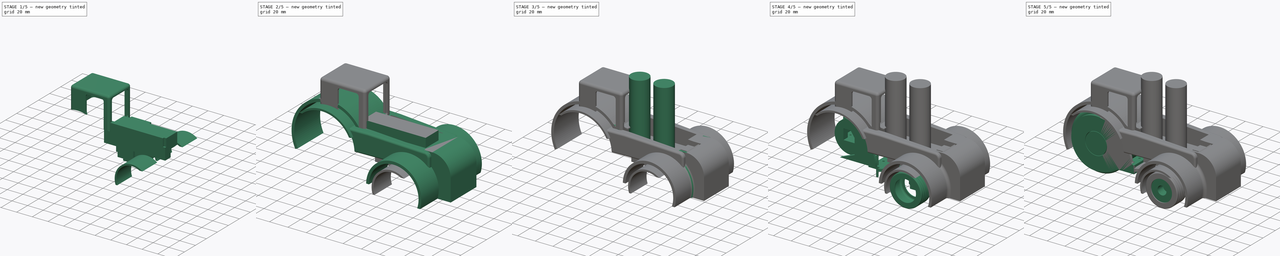
[diagram: build sequence overview — one tinted view per stage of 5, left to right]
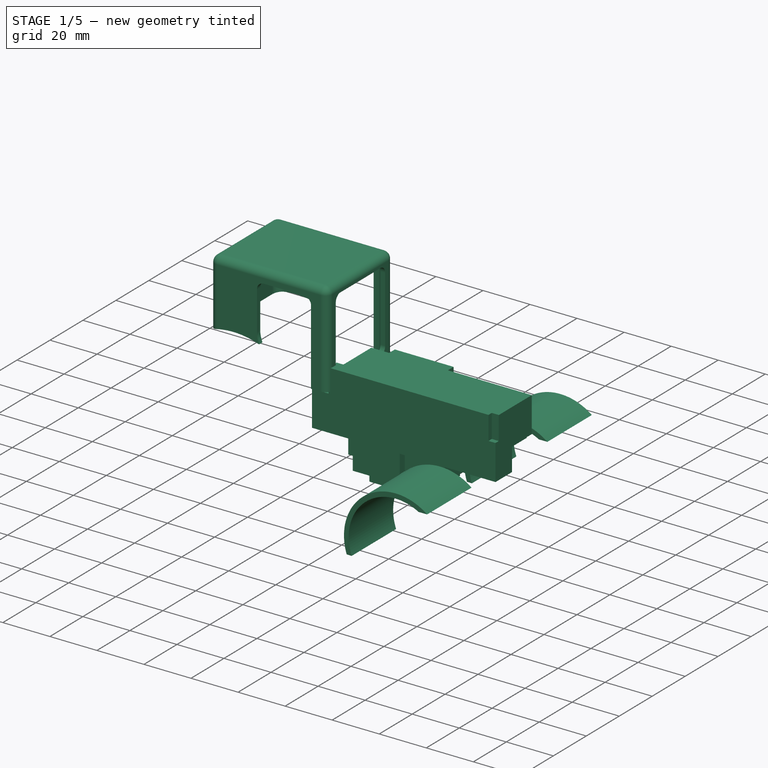
[diagram: stage 1 of 5 — iso view after this stage's code; geometry added in this stage tinted green]
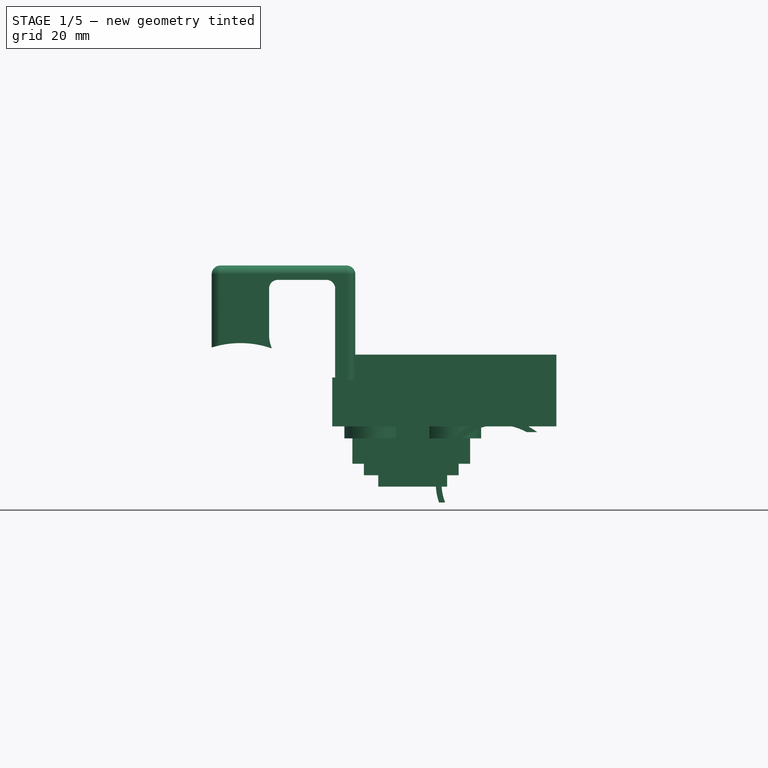
[diagram: stage 1 of 5 — front view after this stage's code; geometry added in this stage tinted green]
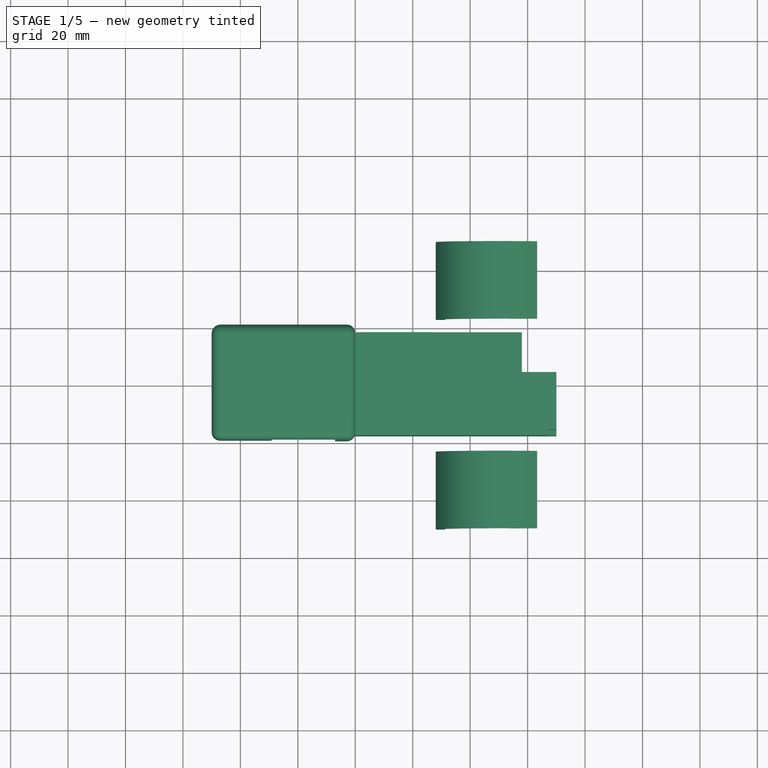
[diagram: stage 1 of 5 — top view after this stage's code; geometry added in this stage tinted green]
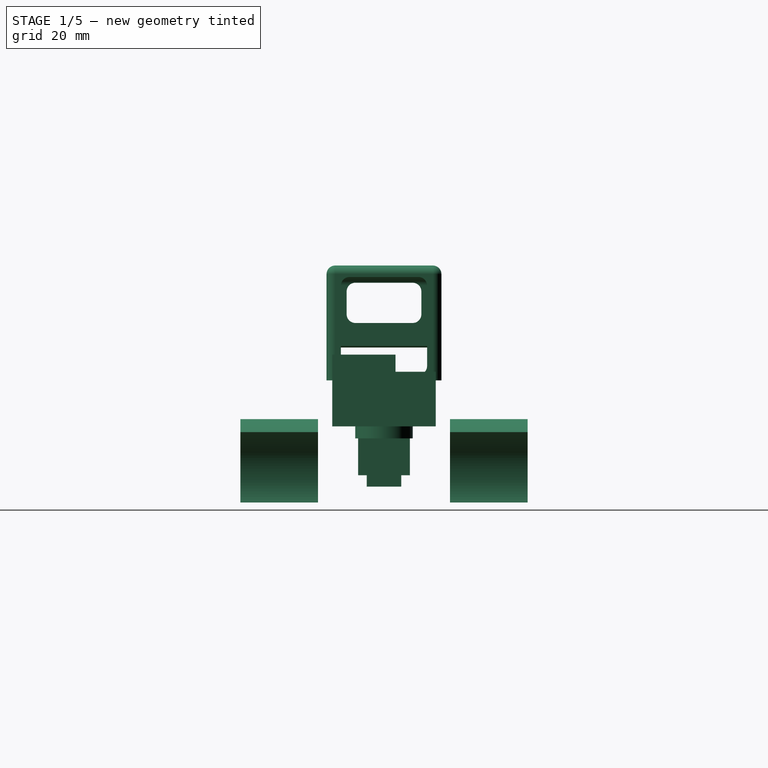
[diagram: stage 1 of 5 — right view after this stage's code; geometry added in this stage tinted green]
FCSTD DOCUMENT  (FreeCAD 0.16R6506 (Git))
Label: TractorStyle
License: CreativeCommons Attribution-ShareAlike
LicenseURL: http://creativecommons.org/licenses/by-sa/4.0/
objects: Part::Cut×55, Part::Box×48, Part::Cylinder×42, Part::MultiFuse×39, Part::Fillet×28, Part::Feature×9, Sketcher::SketchObject×8, PartDesign::Pad×8, Part::Mirroring×6, Part::FeaturePython×5, Part::Torus×4, PartDesign::Fillet×2, App::DocumentObjectGroup×1
note: 262 computed .brp shape members not serialized (recipe doc carries the construction recipe); baked Part::Feature solids carry a one-line shape summary decoded from their .brp

FEATURE [Part::Box] Box021  label="Cubo021"
  Height = 15
  Length = 66
  Placement = pos=(35,-18,4) rot=(0,0,1;0rad)
  Width = 36
FEATURE [Part::Box] Box025  label="Cubo025"
  Height = 15
  Length = 68
  Placement = pos=(35,-18,4) rot=(0,0,1;0rad)
  Width = 10
FEATURE [Part::Box] Box026  label="Cubo026"
  Height = 15
  Length = 68
  Placement = pos=(35,-16,14) rot=(0,0,1;0rad)
  Width = 20
FEATURE [Part::MultiFuse] Fusion029
  Placement = pos=(10,0,0) rot=(0,0,1;0rad)
  Shapes = -> [Box026,Box025]
FEATURE [App::DocumentObjectGroup] Group  label="GitFiles"
  Group = -> [Fusion,Fillet005,Fusion006,Fillet007,Fusion007,Pad004,Fusion009,Part__Mirroring002,Fillet015,Cut024,Part__Mirroring004,Part__Mirroring005,Fusion024,Cut036]
FEATURE [Part::Cylinder] Cylinder038  label="GuardaBarrosPreformaInterior"
  Angle = 360
  Height = 150
  Placement = pos=(90,70,-15.5) rot=(1,0,0;1.5708rad)
  Radius = 20
FEATURE [Part::Cylinder] Cylinder039  label="GuardaBarrosPreformaExterior"
  Angle = 360
  Height = 27
  Placement = pos=(90,-23,-15.5) rot=(1,0,0;1.5708rad)
  Radius = 22
FEATURE [Part::Cut] Cut037  label="AnilloDeGuardabarrosDelantero"
  Base = -> Cylinder039
  Tool = -> Cylinder038
FEATURE [Part::Box] Box027  label="CuboCorteInferior"
  Height = 30
  Length = 50
  Placement = pos=(66,-55,-52.5) rot=(0,0,1;0rad)
  Width = 40
FEATURE [Part::Box] Box028  label="CuboCorteSuperior"
  Height = 42
  Length = 20
  Placement = pos=(99,-55,-40) rot=(0,0,1;0rad)
  Width = 40
FEATURE [Part::MultiFuse] Fusion031  label="CubosCorteGuardabarros"
  Shapes = -> [Box027,Box028]
FEATURE [Part::Cut] Cut038  label="GuardabarrosDelantero"
  Base = -> Cut037
  Tool = -> Fusion031
FEATURE [Part::Cylinder] Cylinder041  label="CilindroInteriorPreformaGuardabarrosTrasero"
  Angle = 360
  Height = 60
  Placement = pos=(0,30,0) rot=(1,0,0;1.5708rad)
  Radius = 33
FEATURE [Part::Mirroring] Part__Mirroring006  label="GuardabarrosDelantero (Mirror #5)"
  Base = (0,0,0)
  Normal = (0,1,0)
  Source = -> Cut038
FEATURE [Part::Box] Box036  label="CuboBasicoCabina"
  Height = 40
  Length = 50
  Placement = pos=(-10,-20,20) rot=(0,0,1;0rad)
  Width = 40
FEATURE [Part::Fillet] Fillet028  label="CabinaCurvada"
  Base = -> Box036
  Edges = 8 edges r=3: [Edge1,Edge2,Edge3,Edge5,Edge6,Edge7,Edge10,Edge12]
FEATURE [Part::Box] Box037  label="CuboVentanillaFrontal"
  Height = 34
  Length = 20
  Placement = pos=(31,-15,22) rot=(0,0,1;0rad)
  Width = 30
FEATURE [Part::Box] Box038  label="CuboRestaBasico"
  Height = 36
  Length = 46
  Placement = pos=(-8,-18,20) rot=(0,0,1;0rad)
  Width = 36
FEATURE [Part::Fillet] Fillet029  label="RestaCabinaCurvada"
  Base = -> Box038
  Edges = 8 edges r=3: [Edge1,Edge2,Edge3,Edge5,Edge6,Edge7,Edge10,Edge12]
FEATURE [Part::Cut] Cut044  label="CabinaHueca"
  Base = -> Fillet028
  Tool = -> Fillet029
FEATURE [Part::Fillet] Fillet030  label="VentanillaFrontalCurvada"
  Base = -> Box037
  Edges = 4 edges r=3: [Edge9,Edge10,Edge11,Edge12]
FEATURE [Part::Cut] Cut045  label="CabinaVentanillaFrontal"
  Base = -> Cut044
  Tool = -> Fillet030
FEATURE [Part::Box] Box039  label="CuboVentanilla3"
  Height = 41
  Length = 10
  Placement = pos=(23,-25,14) rot=(0,0,1;0rad)
  Width = 50
FEATURE [Part::Box] Box040  label="CuboVentanilla2"
  Height = 16
  Length = 37
  Placement = pos=(10,-25,34) rot=(0,1,0;1.25664rad)
  Width = 50
FEATURE [Part::Box] Box041  label="CuboVentanilla1"
  Height = 21
  Length = 17
  Placement = pos=(10,-25,34) rot=(0,0,1;0rad)
  Width = 50
FEATURE [Part::MultiFuse] Fusion035  label="FusionVentanilla1"
  Shapes = -> [Box041,Box040]
FEATURE [Part::MultiFuse] Fusion036  label="FusionVentanilla"
  Shapes = -> [Box039,Fusion035]
FEATURE [Part::Fillet] Fillet031  label="VentanillaCurvasSuperiores"
  Base = -> Fusion036
  Edges = 2 edges r=3: [Edge3,Edge15]
FEATURE [Part::Fillet] Fillet032  label="VentanillaCurvada"
  Base = -> Fillet031
  Edges = 1 edges r=10: [Edge3]
FEATURE [Part::Cut] Cut046  label="CabinaVentanillasLateralesVentanillaFrontal"
  Base = -> Cut045
  Tool = -> Fillet032
FEATURE [Part::Box] Box042  label="CuboVentanillaTrasera"
  Height = 14
  Length = 10
  Placement = pos=(-15,-13,40) rot=(0,0,1;0rad)
  Width = 26
FEATURE [Part::Fillet] Fillet033  label="VentanillaTraseraCurvada"
  Base = -> Box042
  Edges = 4 edges r=3: [Edge9,Edge10,Edge11,Edge12]
FEATURE [Part::Cut] Cut047  label="CabinaConVentanillas"
  Base = -> Cut046
  Tool = -> Fillet033
FEATURE [Part::Cut] Cut049  label="CabinaRecortada"
  Base = -> Cut047
  Tool = -> Cylinder041
FEATURE [Part::MultiFuse] Fusion037  label="GuardabarrosDelanteros"
  Shapes = -> [Cut038,Part__Mirroring006]
FEATURE [Part::FeaturePython] Clone003  label="Clone of Cubo021"  # Draft clone (typed FeaturePython)
  Objects = -> [Box021]
  Placement = pos=(35,-18,4) rot=(0,0,1;0rad)
  Scale = (1,1,1)
FEATURE [Part::FeaturePython] Clone004  label="Clone of Fusion029"  # Draft clone (typed FeaturePython)
  Objects = -> [Fusion029]
  Placement = pos=(10,0,0) rot=(0,0,1;0rad)
  Scale = (1,1,1)
FEATURE [Part::Box] Box043  label="Cube"
  Height = 17
  Length = 66
  Placement = pos=(35,-16,4) rot=(0,0,1;0rad)
  Width = 34
FEATURE [Part::Box] Box044  label="Cube001"
  Height = 4
  Length = 25
  Placement = pos=(45,4,19) rot=(0,0,1;0rad)
  Width = 14
FEATURE [Part::Box] Box045  label="Cube002"
  Height = 15
  Length = 68
  Placement = pos=(42,-18,14) rot=(0,0,1;0rad)
  Width = 5
FEATURE [Part::MultiFuse] Fusion039  label="Electronica"
  Placement = pos=(-3,0,0) rot=(0,0,1;0rad)
  Shapes = -> [Box045,Box044,Box043,Clone004,Clone003]
FEATURE [Part::Box] Box046  label="CuboTornilleria"
  Height = 4
  Length = 33
  Placement = pos=(43,-9,-13) rot=(0,0,1;0rad)
  Width = 18
FEATURE [Part::Box] Box047  label="Tornilleria2"
  Height = 13
  Length = 20
  Placement = pos=(43,-9,-13) rot=(0,0,1;0rad)
  Width = 18
FEATURE [Part::MultiFuse] Fusion024002  label="Atornillate"
  Shapes = -> [Box047,Box046]
FEATURE [Part::Box] Box048  label="CuboAccesoServo"
  Height = 15
  Length = 41
  Placement = pos=(39,-6,-9) rot=(0,0,1;0rad)
  Width = 12
FEATURE [Part::Feature] Fusion024004  label="CilindorsAccesoTornilleria"
  shape: bbox 47.6 x 20 x 72 mm, 6 faces, 2 solids (baked)
FEATURE [Part::Box] Box049  label="CuboRecorteCilindros"
  Height = 100
  Length = 100
  Placement = pos=(0,-30,16) rot=(0,0,1;0rad)
  Width = 100
FEATURE [Part::Cut] Cut052  label="CabinaPerforada"
  Base = -> Fusion024004
  Tool = -> Box049
FEATURE [Part::Box] Box050  label="CuboAgujeroServo"
  Height = 10
  Length = 24
  Placement = pos=(48,-6,-17) rot=(0,0,1;0rad)
  Width = 12
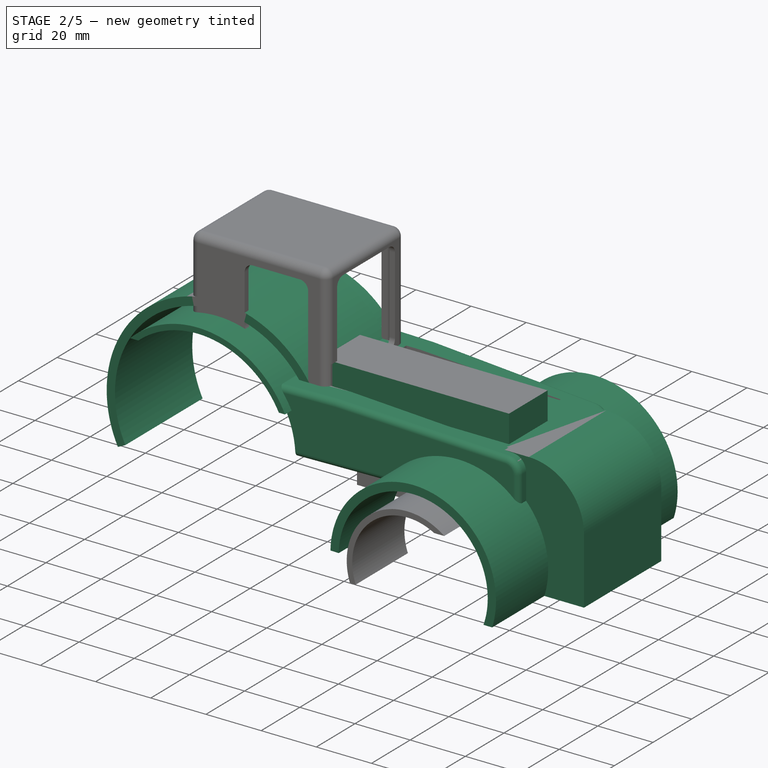
[diagram: stage 2 of 5 — iso view after this stage's code; geometry added in this stage tinted green]
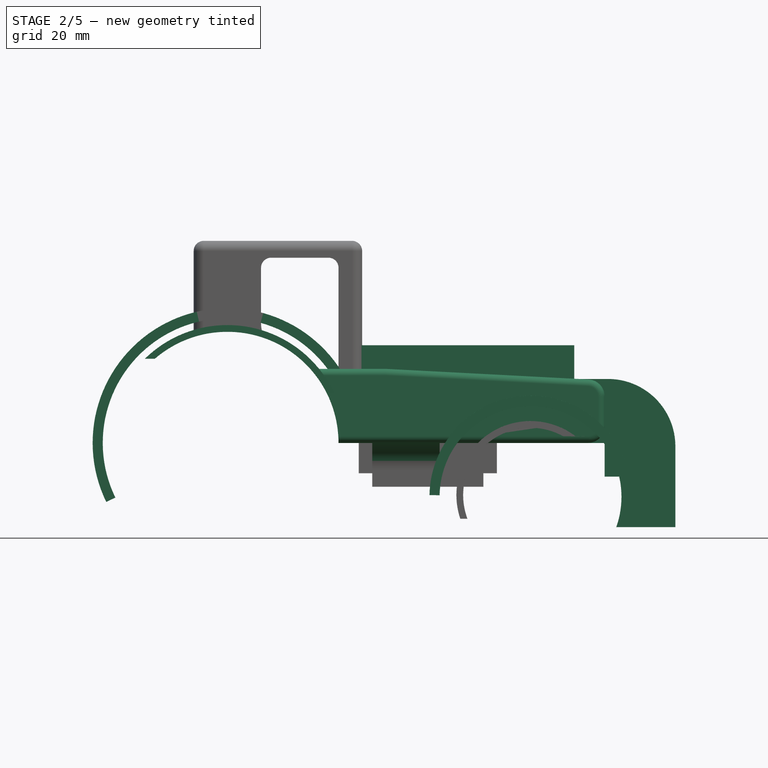
[diagram: stage 2 of 5 — front view after this stage's code; geometry added in this stage tinted green]
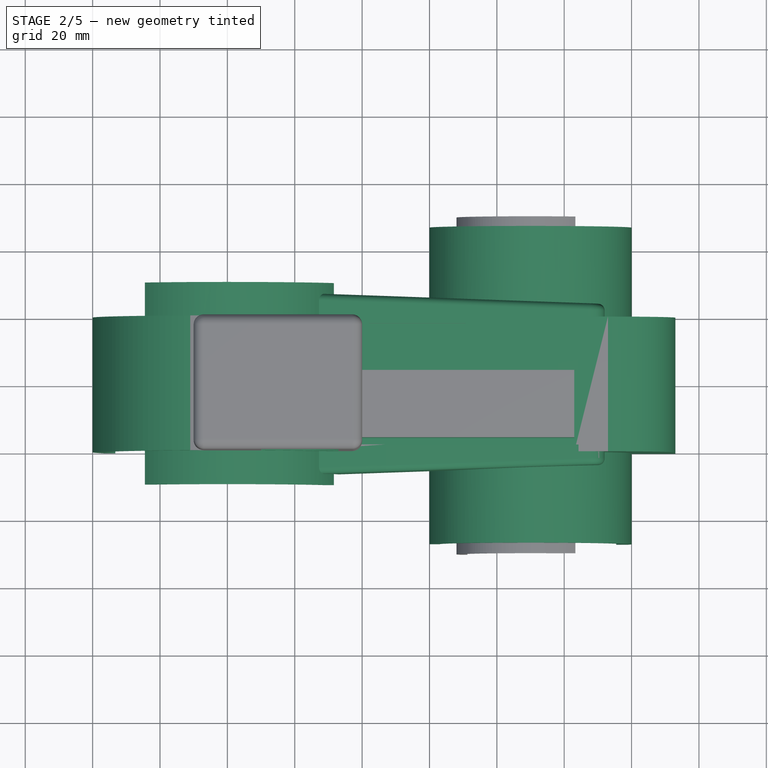
[diagram: stage 2 of 5 — top view after this stage's code; geometry added in this stage tinted green]
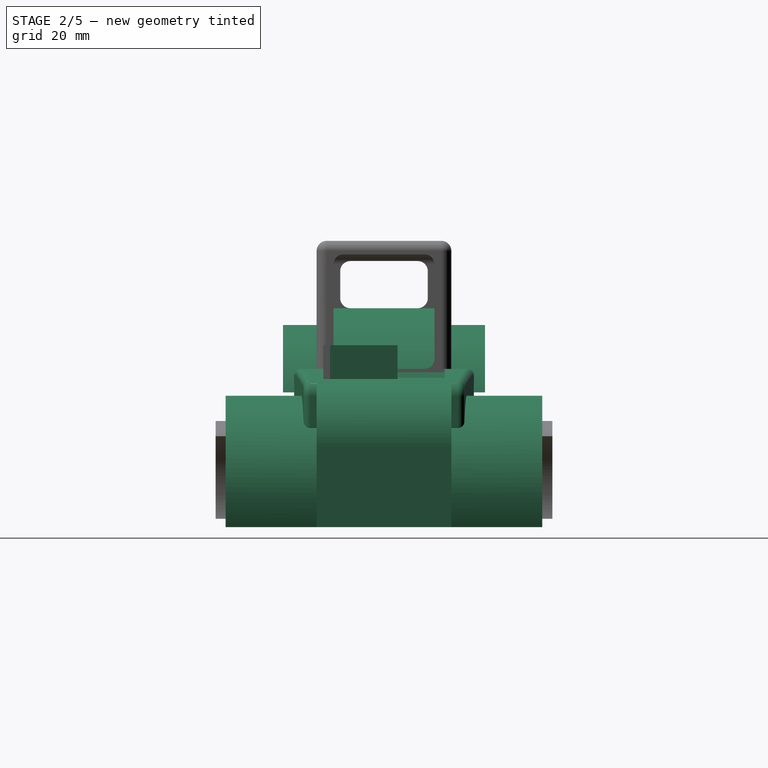
[diagram: stage 2 of 5 — right view after this stage's code; geometry added in this stage tinted green]
FEATURE [Part::Box] Box017  label="Cubo017"
  Height = 15
  Length = 66
  Placement = pos=(35,-18,4) rot=(0,0,1;0rad)
  Width = 36
FEATURE [Part::Box] Box018  label="Cubo018"
  Height = 15
  Length = 68
  Placement = pos=(35,-18,4) rot=(0,0,1;0rad)
  Width = 10
FEATURE [Part::Box] Box019  label="Cubo019"
  Height = 15
  Length = 68
  Placement = pos=(35,-16,14) rot=(0,0,1;0rad)
  Width = 20
FEATURE [Part::MultiFuse] Fusion023
  Shapes = -> [Box019,Box018]
FEATURE [Part::Box] Box020  label="Cubo020"
  Height = 20
  Length = 41
  Placement = pos=(39,-6,-9) rot=(0,0,1;0rad)
  Width = 12
FEATURE [Part::Cylinder] Cylinder033  label="Cilindro033"
  Angle = 180
  Height = 40
  Placement = pos=(0,20,0) rot=(0.950615,-0.219467,0.219467;1.62142rad)
  Radius = 40
FEATURE [Part::Cylinder] Cylinder034  label="Cilindro034"
  Angle = 360
  Height = 40
  Placement = pos=(0,20,0) rot=(1,0,0;1.5708rad)
  Radius = 37
FEATURE [Part::Cut] Cut030
  Base = -> Cylinder033
  Tool = -> Cylinder034
FEATURE [Part::Cylinder] Cylinder035  label="Cilindro035"
  Angle = 199
  Height = 94
  Placement = pos=(90,47,-16) rot=(0.970288,0.171088,-0.171088;1.60095rad)
  Radius = 30
FEATURE [Part::Cylinder] Cylinder036  label="Cilindro036"
  Angle = 360
  Height = 94
  Placement = pos=(90,47,-16) rot=(1,0,0;1.5708rad)
  Radius = 27
FEATURE [Part::Cut] Cut032
  Base = -> Cylinder035
  Tool = -> Cylinder036
FEATURE [Part::Box] Box022  label="Cubo022"
  Height = 60
  Length = 97
  Placement = pos=(33,-20,-29) rot=(0,0,1;0rad)
  Width = 40
FEATURE [Part::Cut] Cut033
  Base = -> Cut032
  Tool = -> Box022
FEATURE [Part::Box] Box023  label="Cubo023"
  Height = 44
  Length = 30
  Placement = pos=(103,-20,-25) rot=(0,0,1;0rad)
  Width = 40
FEATURE [Part::Cylinder] Cylinder037  label="Cilindro037"
  Angle = 360
  Height = 94
  Placement = pos=(90,47,-16) rot=(1,0,0;1.5708rad)
  Radius = 27
FEATURE [Part::Cut] Cut034
  Base = -> Box023
  Tool = -> Cylinder037
FEATURE [Part::Box] Box024  label="Cubo024"
  Height = 60
  Length = 99
  Placement = pos=(33,-58,-85) rot=(0,0,1;0rad)
  Width = 122
FEATURE [Part::Cut] Cut035
  Base = -> Cut033
  Tool = -> Box024
FEATURE [Part::MultiFuse] Fusion027
  Shapes = -> [Cut035,Cut034]
FEATURE [Part::Fillet] Fillet024
  Base = -> Fusion027
  Edges = 1 edges r=20: [Edge18]
FEATURE [Part::Cylinder] Cylinder040  label="CilindroExteriorPreformaGuardabarrosTrasero"
  Angle = 360
  Height = 60
  Placement = pos=(0,30,0) rot=(1,0,0;1.5708rad)
  Radius = 35
FEATURE [Part::Cut] Cut039  label="PreformaGuardabarrosTrasero"
  Base = -> Cylinder040
  Tool = -> Cylinder041
FEATURE [Part::Box] Box029  label="Cubo1CorteGuardabarrosTrasero"
  Height = 100
  Length = 25
  Placement = pos=(-39,-60,-75) rot=(0,0,1;0rad)
  Width = 120
FEATURE [Part::Box] Box030  label="Cubo2CorteGuardabarrosTrasero"
  Height = 55
  Length = 63
  Placement = pos=(-21,-60,-40) rot=(0,0,1;0rad)
  Width = 120
FEATURE [Part::MultiFuse] Fusion032  label="CubosCorteGuardabarrosTrasero"
  Shapes = -> [Box030,Box029]
FEATURE [Part::Cut] Cut040  label="GuardabarrosTrasero"
  Base = -> Cut039
  Tool = -> Fusion032
FEATURE [Part::Box] Box031  label="CuboBasicoMotorTractor"
  Height = 22
  Length = 91
  Placement = pos=(21,-28,0) rot=(0,0,1;0rad)
  Width = 55
FEATURE [Part::Box] Box032  label="CuboForntalMotorTractor"
  Height = 20
  Length = 20
  Placement = pos=(112,-15,-10) rot=(0,0,1;0rad)
  Width = 30
FEATURE [Part::MultiFuse] Fusion033  label="CubreMotorBasico"
  Shapes = -> [Box031,Box032]
FEATURE [Part::Box] Box033  label="CuboCorteAnguloFrontal"
  Height = 16
  Length = 45
  Placement = pos=(113,-15,11) rot=(0,1,0;0.349066rad)
  Width = 30
FEATURE [Part::Cut] Cut041  label="CubreMotorCorteFrontal"
  Base = -> Fusion033
  Tool = -> Box033
FEATURE [Part::Box] Box034  label="CuboCorteFrontalInclinado"
  Height = 20
  Length = 150
  Placement = pos=(47,-50,22) rot=(0,1,0;0.05236rad)
  Width = 100
FEATURE [Part::Cut] Cut042  label="FrontalCortes"
  Base = -> Cut041
  Tool = -> Box034
FEATURE [PartDesign::Fillet] Fillet026  label="FilletDelantero"
  Base = -> Cut042 [Edge20,Edge14,Edge15]
  Radius = 5
FEATURE [Part::Box] Box035  label="CuboCorteAnguloLateral"
  Height = 100
  Length = 100
  Placement = pos=(21,-37,0) rot=(0,0,1;0.034907rad)
  Width = 10
FEATURE [Part::Mirroring] Part__Mirroring007  label="Mirror"
  Base = (0,0,0)
  Normal = (0,1,0)
  Source = -> Box035
FEATURE [Part::MultiFuse] Fusion034  label="UnionCubosCorte"
  Shapes = -> [Part__Mirroring007,Box035]
FEATURE [Part::Cut] Cut043  label="CubreMotorCortesAngulosos"
  Base = -> Fillet026
  Tool = -> Fusion034
FEATURE [PartDesign::Fillet] Fillet027  label="RedondeoCubreMotor"
  Base = -> Cut043 [Edge34,Edge8,Edge10,Edge29,Edge6,Edge27]
  Radius = 2
FEATURE [Part::Cut] Cut048  label="CubreMotorCorteCilintroGuardabarrosTrasero"
  Base = -> Fillet027
  Tool = -> Cylinder041
FEATURE [Part::MultiFuse] Fusion038  label="CabinaCompleta"
  Shapes = -> [Fusion037,Cut048,Cut049,Cut040]
FEATURE [Part::Cut] Cut050  label="CabinaHuecoElectronica"
  Base = -> Fusion038
  Tool = -> Fusion039
FEATURE [Part::MultiFuse] Fusion024003  label="CabinaConSoporteServo"
  Shapes = -> [Cut050,Fusion024002]
FEATURE [Part::Cut] Cut051  label="CabinaHuecoServo"
  Base = -> Fusion024003
  Tool = -> Box048
FEATURE [Part::Fillet] Fillet034  label="CabinaNervio"
  Base = -> Cut051
  Edges = 2 edges r=8: [Edge313,Edge319]
FEATURE [Part::Cut] Cut053  label="AgujerosESMAX08"
  Base = -> Fillet034
  Tool = -> Cut052
FEATURE [Part::Feature] Fusion018001  label="CilindrosTornillosServo"
  shape: bbox 29.8 x 2.2 x 72 mm, 6 faces, 2 solids (baked)
FEATURE [Part::Cut] Cut054  label="CarroceriaSinAgujeroServo"
  Base = -> Cut053
  Tool = -> Fusion018001
FEATURE [Part::Cut] Cut055  label="CarroceríaCompleta"
  Base = -> Cut054
  Tool = -> Box050
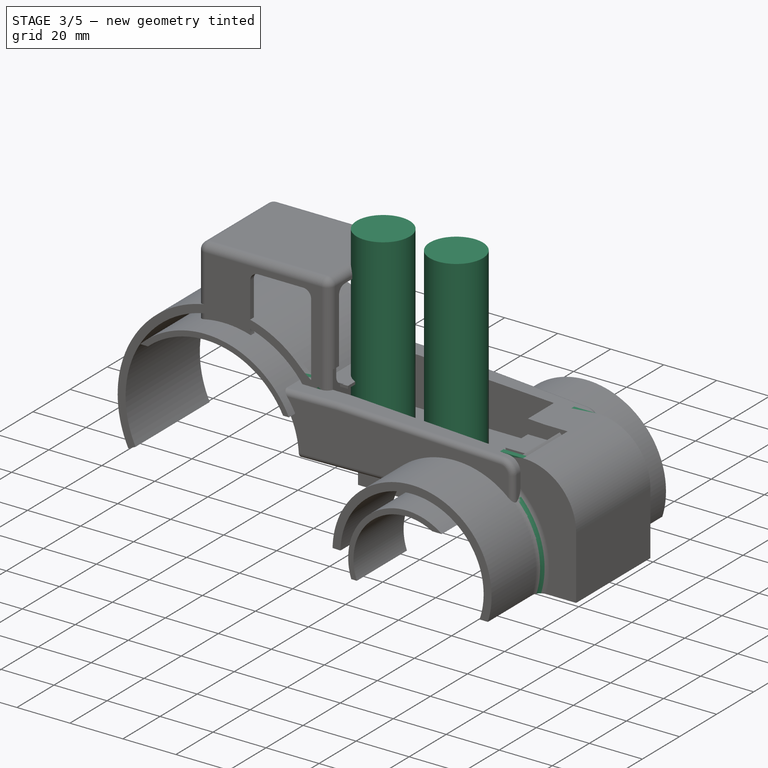
[diagram: stage 3 of 5 — iso view after this stage's code; geometry added in this stage tinted green]
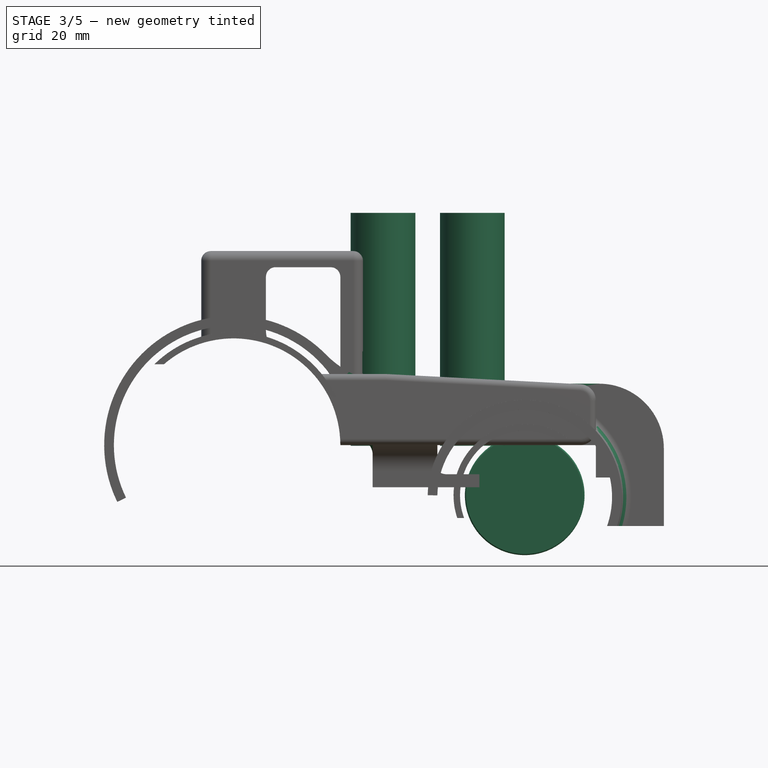
[diagram: stage 3 of 5 — front view after this stage's code; geometry added in this stage tinted green]
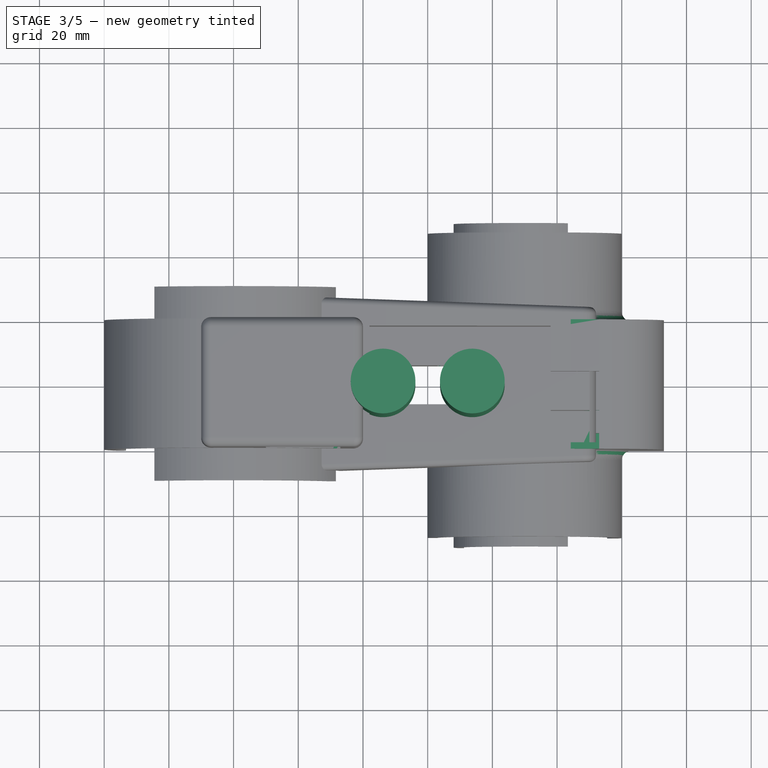
[diagram: stage 3 of 5 — top view after this stage's code; geometry added in this stage tinted green]
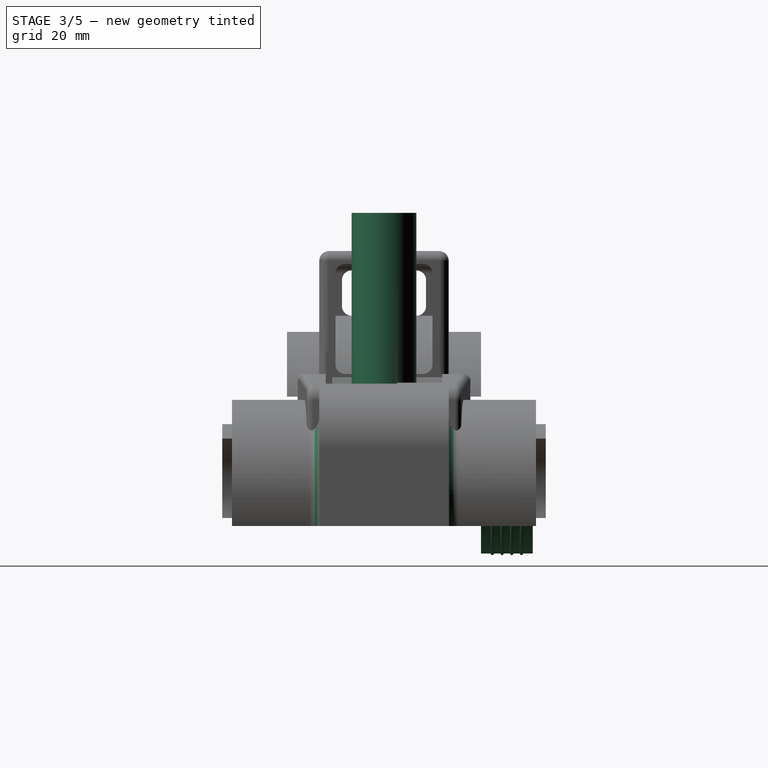
[diagram: stage 3 of 5 — right view after this stage's code; geometry added in this stage tinted green]
FEATURE [Part::Cylinder] Cylinder017  label="Cilindro017"
  Angle = 360
  Height = 14
  Placement = pos=(90,44,-15.5) rot=(1,0,0;1.5708rad)
  Radius = 5
FEATURE [Part::Cylinder] Cylinder018  label="Cilindro018"
  Angle = 360
  Height = 14
  Placement = pos=(90,45,-15.5) rot=(1,0,0;1.5708rad)
  Radius = 16
FEATURE [Part::Cylinder] Cylinder019  label="Cilindro019"
  Angle = 360
  Height = 14
  Placement = pos=(90,44,-15.5) rot=(1,0,0;1.5708rad)
  Radius = 1
FEATURE [Part::MultiFuse] Fusion010
  Shapes = -> [Cylinder017,Cylinder018]
FEATURE [Part::Cut] Cut013
  Base = -> Fusion010
  Tool = -> Cylinder019
FEATURE [Part::Cylinder] Cylinder020  label="Cilindro020"
  Angle = 360
  Height = 9
  Placement = pos=(90,45,-15.5) rot=(1,0,0;1.5708rad)
  Radius = 5
FEATURE [Part::Cut] Cut014
  Base = -> Cut013
  Tool = -> Cylinder020
FEATURE [Part::Cylinder] Cylinder021  label="Cilindro021"
  Angle = 360
  Height = 16
  Placement = pos=(90,46,-15.5) rot=(1,0,0;1.5708rad)
  Radius = 18
FEATURE [Part::Cylinder] Cylinder022  label="Cilindro022"
  Angle = 360
  Height = 16
  Placement = pos=(90,46,-15.5) rot=(1,0,0;1.5708rad)
  Radius = 12
FEATURE [Part::Fillet] Fillet008
  Base = -> Cut014
  Edges = 2 edges r=2: [Edge7,Edge10]
  Placement = pos=(0,1,0) rot=(0,0,1;0rad)
FEATURE [Part::FeaturePython] Clone002  label="Clone of Fillet008"  # Draft clone (typed FeaturePython)
  Objects = -> [Fillet008]
  Scale = (1,1,1)
FEATURE [Part::Box] Box011  label="Cubo011"
  Height = 20
  Length = 24
  Placement = pos=(48,-6,-19) rot=(0,0,1;0rad)
  Width = 12
FEATURE [Part::Box] Box012  label="Cubo012"
  Height = 4
  Length = 33
  Placement = pos=(43,-9,-13) rot=(0,0,1;0rad)
  Width = 18
FEATURE [Part::Cut] Cut023
  Base = -> Box012
  Tool = -> Box011
FEATURE [Part::Cylinder] Cylinder029  label="Cilindro029"
  Angle = 360
  Height = 72
  Placement = pos=(46.2,0,-35.7) rot=(0,0,1;0rad)
  Radius = 1.1
FEATURE [Part::Cylinder] Cylinder030  label="Cilindro030"
  Angle = 360
  Height = 72
  Placement = pos=(73.8,0,-35.7) rot=(0,0,1;0rad)
  Radius = 1.1
FEATURE [Part::MultiFuse] Fusion019
  Shapes = -> [Cylinder030,Cylinder029]
FEATURE [Part::Cut] Cut025
  Base = -> Cut023
  Tool = -> Fusion019
FEATURE [Part::Box] Box013  label="Cubo013"
  Height = 2
  Length = 70
  Placement = pos=(33,-20,2) rot=(0,0,1;0rad)
  Width = 40
FEATURE [Part::Box] Box014  label="Cubo014"
  Height = 15
  Length = 18
  Placement = pos=(43,-9,-13) rot=(0,0,1;0rad)
  Width = 3
FEATURE [Part::Box] Box015  label="Cubo015"
  Height = 15
  Length = 18
  Placement = pos=(43,6,-13) rot=(0,0,1;0rad)
  Width = 3
FEATURE [Part::MultiFuse] Fusion020
  Shapes = -> [Box014,Cut025,Box013,Box015]
FEATURE [Part::Fillet] Fillet017
  Base = -> Fusion020
  Edges = 2 edges r=10: [Edge16,Edge19]
FEATURE [Part::Fillet] Fillet018
  Base = -> Fillet017
  Edges = 2 edges r=5: [Edge6,Edge16]
FEATURE [Part::Fillet] Fillet019
  Base = -> Fillet018
  Edges = 2 edges r=5: [Edge64,Edge68]
FEATURE [Part::Fillet] Fillet020
  Base = -> Fillet019
  Edges = 2 edges r=5: [Edge28,Edge42]
FEATURE [Part::Torus] Torus  label="Toro"
  Angle1 = -180
  Angle2 = 180
  Angle3 = 360
  Placement = pos=(90,42.5,-15.5) rot=(1,0,0;1.5708rad)
  Radius1 = 18
  Radius2 = 0.5
FEATURE [Part::Torus] Torus001  label="Toro001"
  Angle1 = -180
  Angle2 = 180
  Angle3 = 360
  Placement = pos=(90,39.5,-15.5) rot=(1,0,0;1.5708rad)
  Radius1 = 18
  Radius2 = 0.5
FEATURE [Part::Torus] Torus002  label="Toro002"
  Angle1 = -180
  Angle2 = 180
  Angle3 = 360
  Placement = pos=(90,36.5,-15.5) rot=(1,0,0;1.5708rad)
  Radius1 = 18
  Radius2 = 0.5
FEATURE [Part::Torus] Torus003  label="Toro003"
  Angle1 = -180
  Angle2 = 180
  Angle3 = 360
  Placement = pos=(90,33.5,-15.5) rot=(1,0,0;1.5708rad)
  Radius1 = 18
  Radius2 = 0.5
FEATURE [Part::MultiFuse] Fusion021
  Shapes = -> [Torus003,Torus001,Torus002,Torus]
FEATURE [Part::Box] Box016  label="Cubo016"
  Height = 15
  Length = 70
  Placement = pos=(33,-20,4) rot=(0,0,1;0rad)
  Width = 40
FEATURE [Part::Cut] Cut027
  Base = -> Box016
  Tool = -> Box017
FEATURE [Part::Cylinder] Cylinder031  label="Cilindro031"
  Angle = 360
  Height = 72
  Placement = pos=(46.2,0,-35.7) rot=(0,0,1;0rad)
  Radius = 10
FEATURE [Part::Cylinder] Cylinder032  label="Cilindro032"
  Angle = 360
  Height = 72
  Placement = pos=(73.8,0,-35.7) rot=(0,0,1;0rad)
  Radius = 10
FEATURE [Part::MultiFuse] Fusion024
  Placement = pos=(0,0,35.5) rot=(0,0,1;0rad)
  Shapes = -> [Cylinder032,Cylinder031]
FEATURE [Part::Cut] Cut028
  Base = -> Cut027
  Tool = -> Fusion023
FEATURE [Part::MultiFuse] Fusion025
  Shapes = -> [Fillet020,Cut028]
FEATURE [Part::Cut] Cut029
  Base = -> Fusion025
  Tool = -> Box020
FEATURE [Part::MultiFuse] Fusion026
  Shapes = -> [Cut029,Cut030]
FEATURE [Part::Cut] Cut031
  Base = -> Fusion026
  Tool = -> Box021
FEATURE [Part::Fillet] Fillet021
  Base = -> Cut031
  Edges = 2 edges r=30: [Edge8,Edge23]
FEATURE [Part::Fillet] Fillet022
  Base = -> Fillet021
  Edges = 1 edges r=20: [Edge42]
FEATURE [Part::Fillet] Fillet023
  Base = -> Fillet022
  Edges = 1 edges r=3: [Edge18]
FEATURE [Part::MultiFuse] Fusion028
  Shapes = -> [Fillet024,Fillet023]
FEATURE [Part::Fillet] Fillet025
  Base = -> Fusion028
  Edges = 2 edges r=3: [Edge41,Edge63]
FEATURE [Part::Cut] Cut036
  Base = -> Fillet025
  Tool = -> Fusion029
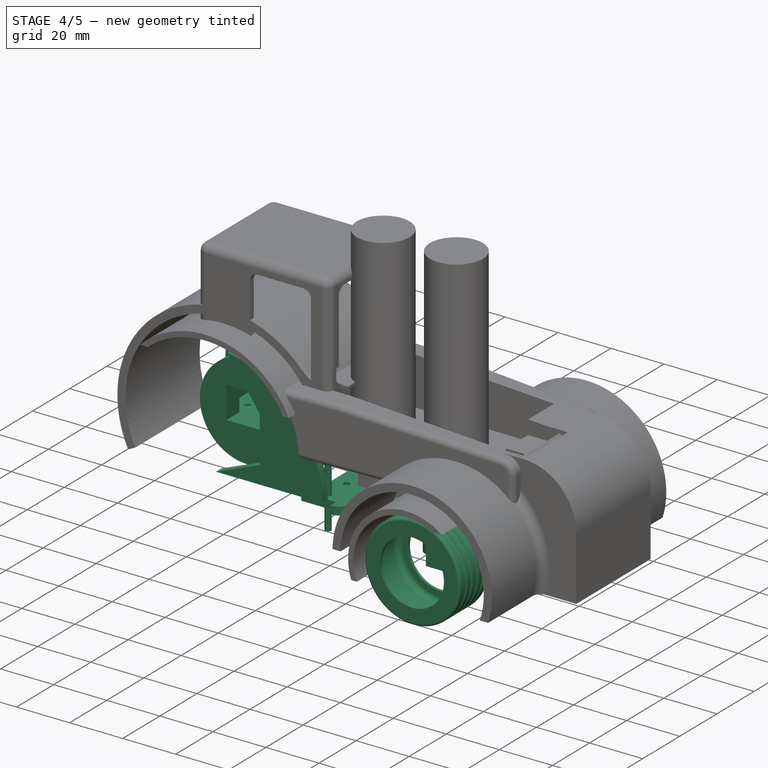
[diagram: stage 4 of 5 — iso view after this stage's code; geometry added in this stage tinted green]
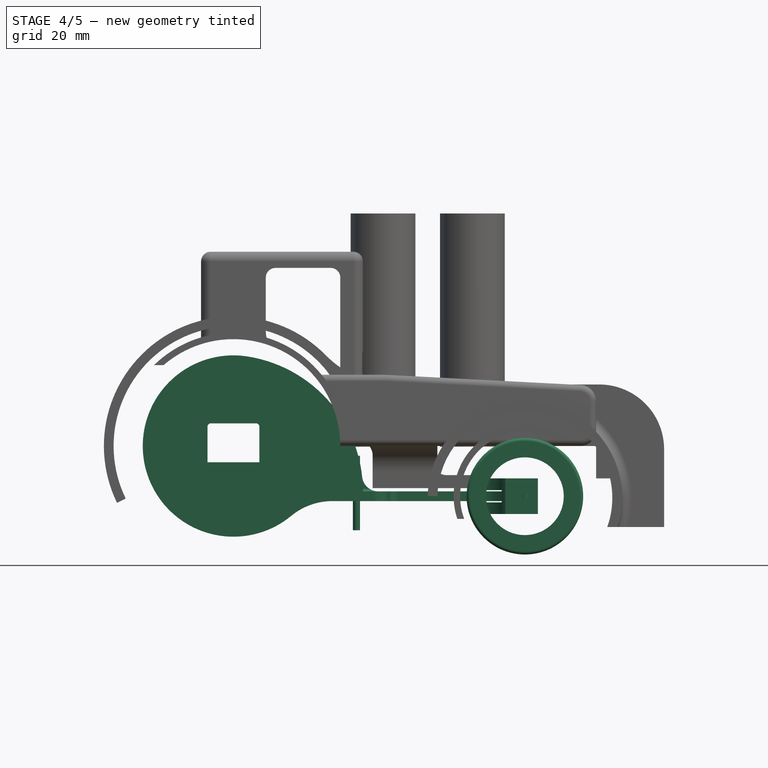
[diagram: stage 4 of 5 — front view after this stage's code; geometry added in this stage tinted green]
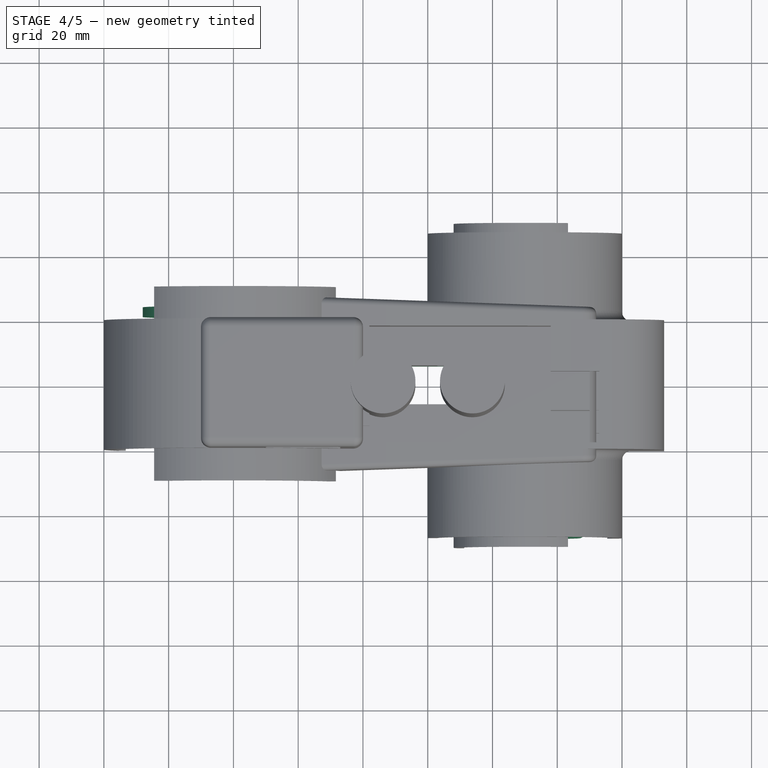
[diagram: stage 4 of 5 — top view after this stage's code; geometry added in this stage tinted green]
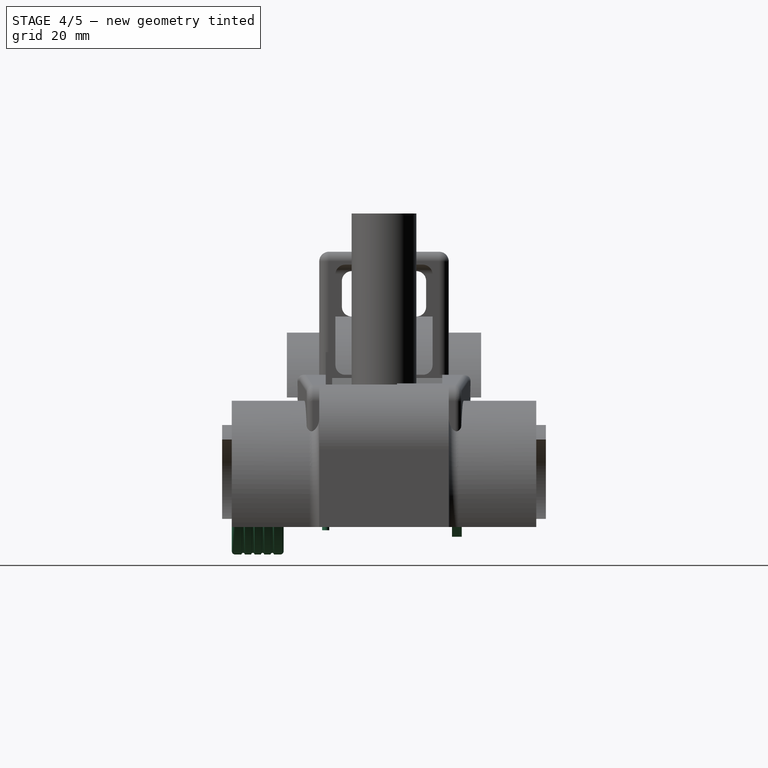
[diagram: stage 4 of 5 — right view after this stage's code; geometry added in this stage tinted green]
FEATURE [Part::Cylinder] Cylinder005  label="Cilindro005"
  Angle = 360
  Height = 31
  Placement = pos=(0,24,0) rot=(1,0,0;1.5708rad)
  Radius = 18
FEATURE [Part::Box] Box  label="Cubo"
  Height = 12
  Length = 16
  Placement = pos=(-8,-8,-5) rot=(0,0,1;0rad)
  Width = 26
FEATURE [Part::Fillet] Fillet006
  Base = -> Box
  Edges = 2 edges r=1: [Edge2,Edge6]
FEATURE [Part::Box] Box001  label="Cubo001"
  Height = 12.6
  Length = 28
  Placement = pos=(-14,0,-5) rot=(0,0,1;0rad)
  Width = 26
FEATURE [Part::MultiFuse] Fusion002
  Shapes = -> [Box001,Fillet006]
FEATURE [Part::Cut] Cut003
  Base = -> Cylinder005
  Tool = -> Fusion002
FEATURE [Part::Cylinder] Cylinder006  label="Cilindro006"
  Angle = 360
  Height = 36
  Placement = pos=(9,5.75,-45) rot=(0,0,1;0rad)
  Radius = 2
FEATURE [Part::Cylinder] Cylinder007  label="Cilindro007"
  Angle = 360
  Height = 36
  Placement = pos=(9,5.75,-40) rot=(0,0,1;0rad)
  Radius = 1
FEATURE [Part::MultiFuse] Fusion003
  Shapes = -> [Cylinder006,Cylinder007]
FEATURE [Part::Mirroring] Part__Mirroring  label="Fusion003 (Mirror #1)"
  Base = (0,0,0)
  Normal = (1,0,0)
  Source = -> Fusion003
FEATURE [Part::MultiFuse] Fusion004
  Shapes = -> [Part__Mirroring,Fusion003]
FEATURE [Part::Cut] Cut004
  Base = -> Cut003
  Tool = -> Fusion004
FEATURE [Part::Cylinder] Cylinder008  label="Cilindro008"
  Angle = 360
  Height = 3
  Placement = pos=(0,24,0) rot=(1,0,0;1.5708rad)
  Radius = 18
FEATURE [Part::Cylinder] Cylinder009  label="Cilindro009"
  Angle = 360
  Height = 3
  Placement = pos=(0,24,0) rot=(1,0,0;1.5708rad)
  Radius = 28
FEATURE [Part::Cut] Cut005
  Base = -> Cylinder009
  Tool = -> Cylinder008
FEATURE [Part::MultiFuse] Fusion005
  Shapes = -> [Cut005,Cut004]
FEATURE [PartDesign::Pad] Pad001
  Length = 3
  Length2 = 100
  Placement = pos=(0,0,-14) rot=(0,0,1;0rad)
  Reversed = true
  Sketch = -> Sketch001
  Type = 0
FEATURE [Sketcher::SketchObject] Sketch007
  Placement = pos=(0,0,-17) rot=(0,0,1;0rad)
  sketch-geometry (8):
    g0: ArcOfCircle CenterX=85 CenterY=20 CenterZ=0 NormalX=0 NormalY=0 NormalZ=1 Radius=4 StartAngle=3.91679 EndAngle=6.28318
    g1: ArcOfCircle CenterX=75 CenterY=20 CenterZ=0 NormalX=0 NormalY=0 NormalZ=1 Radius=4 StartAngle=1.884 EndAngle=5.50799
    g2: ArcOfCircle CenterX=80 CenterY=15.101 CenterZ=0 NormalX=0 NormalY=0 NormalZ=1 Radius=3 StartAngle=0.775193 EndAngle=2.3664
    g3: LineSegment StartX=89 StartY=31 StartZ=0 EndX=89 EndY=20 EndZ=0
    g4: Circle CenterX=75 CenterY=20 CenterZ=0 NormalX=0 NormalY=0 NormalZ=1 Radius=1.1
    g5: LineSegment StartX=89 StartY=31 StartZ=0 EndX=79 EndY=31 EndZ=0
    g6: ArcOfCircle CenterX=71.4375 CenterY=31 CenterZ=0 NormalX=0 NormalY=0 NormalZ=1 Radius=7.56247 StartAngle=5.02559 EndAngle=6.28319
    g7: Circle CenterX=85 CenterY=20 CenterZ=0 NormalX=0 NormalY=0 NormalZ=1 Radius=1.1
  constraints (26):
    c: DistanceX(g0) = 85
    c: DistanceY(g0) = 20
    c: Coincident(g2,g0)
    c: Tangent(g2,g0)
    c: Radius(g0) = 4
    c: Coincident(g2,g1)
    c: Tangent(g2,g1)
    c: Vertical(g3)
    c: Coincident(g0,g3)
    c: Tangent(g3,g0)
    c: Coincident(g4,g1)
    c: Radius(g4) = 1.1
    c: Radius(g1) = 4
    c: Distance(g3) = 11
    c: Horizontal(g5)
    c: Coincident(g1,g6)
    c: Tangent(g6,g1)
    c: Coincident(g5,g6)
    c: DistanceY(g1,g0) = 0
    c: Coincident(g3,g5)
    c: Distance(g5) = 10
    c: Perpendicular(g6,g5)
    c: DistanceX(g1,g0) = 10
    c: Coincident(g7,g0)
    c: Radius(g7) = 1.1
    c: Radius(g2) = 3
FEATURE [PartDesign::Pad] Pad002
  Length = 4
  Length2 = 7
  Placement = pos=(0,0,-17) rot=(0,0,1;0rad)
  Sketch = -> Sketch007
  Type = 4
FEATURE [Sketcher::SketchObject] Sketch008
  Placement = pos=(0,0,-17) rot=(0,0,1;0rad)
  sketch-geometry (12):
    g0: ArcOfCircle [constr] CenterX=85 CenterY=20 CenterZ=0 NormalX=0 NormalY=0 NormalZ=1 Radius=4 StartAngle=3.91679 EndAngle=6.28319
    g1: ArcOfCircle [constr] CenterX=75 CenterY=20 CenterZ=0 NormalX=0 NormalY=0 NormalZ=1 Radius=4 StartAngle=1.79211 EndAngle=5.50799
    g2: ArcOfCircle [constr] CenterX=80 CenterY=15.101 CenterZ=0 NormalX=0 NormalY=0 NormalZ=1 Radius=3 StartAngle=0.775193 EndAngle=2.3664
    g3: LineSegment [constr] StartX=89 StartY=30 StartZ=0 EndX=89 EndY=20 EndZ=0
    g4: Circle [constr] CenterX=75 CenterY=20 CenterZ=0 NormalX=0 NormalY=0 NormalZ=1 Radius=1.1
    g5: LineSegment [constr] StartX=89 StartY=30 StartZ=0 EndX=79 EndY=30 EndZ=0
    g6: ArcOfCircle [constr] CenterX=72.75 CenterY=30 CenterZ=0 NormalX=0 NormalY=0 NormalZ=1 Radius=6.25 StartAngle=4.9337 EndAngle=6.28319
    g7: Circle [constr] CenterX=85 CenterY=20 CenterZ=0 NormalX=0 NormalY=0 NormalZ=1 Radius=1.1
    g8: LineSegment StartX=98.0559 StartY=-9.73957 StartZ=0 EndX=53.3418 EndY=-9.73957 EndZ=0
    g9: LineSegment StartX=53.3418 StartY=-9.73957 StartZ=0 EndX=53.3418 EndY=27 EndZ=0
    g10: LineSegment StartX=53.3418 StartY=27 StartZ=0 EndX=98.0559 EndY=27 EndZ=0
    g11: LineSegment StartX=98.0559 StartY=27 StartZ=0 EndX=98.0559 EndY=-9.73957 EndZ=0
  constraints (35):
    c: DistanceX(g0) = 85
    c: DistanceY(g0) = 20
    c: Coincident(g2,g0)
    c: Tangent(g2,g0)
    c: Radius(g0) = 4
    c: Coincident(g2,g1)
    c: Tangent(g2,g1)
    c: Vertical(g3)
    c: Coincident(g0,g3)
    c: Tangent(g3,g0)
    c: Coincident(g4,g1)
    c: Radius(g4) = 1.1
    c: Radius(g1) = 4
    c: Distance(g3) = 10
    c: Horizontal(g5)
    c: Coincident(g1,g6)
    c: Tangent(g6,g1)
    c: Coincident(g5,g6)
    c: DistanceY(g1,g0) = 0
    c: Coincident(g3,g5)
    c: Distance(g5) = 10
    c: Perpendicular(g6,g5)
    c: DistanceX(g1,g0) = 10
    c: Coincident(g7,g0)
    c: Radius(g7) = 1.1
    c: Radius(g2) = 3
    c: Coincident(g8,g9)
    c: Coincident(g9,g10)
    c: Coincident(g10,g11)
    c: Coincident(g11,g8)
    c: Horizontal(g8)
    c: Horizontal(g10)
    c: Vertical(g9)
    c: Vertical(g11)
    c: Distance(g10,g5) = 3
FEATURE [PartDesign::Pad] Pad003
  Length = 0.4
  Length2 = 3.4
  Placement = pos=(0,0,-17) rot=(0,0,1;0rad)
  Sketch = -> Sketch008
  Type = 4
FEATURE [Part::Cut] Cut009
  Base = -> Pad002
  Placement = pos=(5,0,3) rot=(0,0,1;0rad)
  Tool = -> Pad003
FEATURE [Part::Box] Box004  label="Cubo004"
  Height = 20
  Length = 24
  Placement = pos=(48,-6,-31) rot=(0,0,1;0rad)
  Width = 12
FEATURE [Part::Cylinder] Cylinder016  label="Cilindro016"
  Angle = 360
  Height = 87
  Placement = pos=(90,38,-15.5) rot=(1,0,0;1.5708rad)
  Radius = 1
FEATURE [Part::Cut] Cut012
  Base = -> Cut009
  Tool = -> Cylinder016
FEATURE [Part::Cut] Cut015
  Base = -> Cylinder021
  Tool = -> Cylinder022
FEATURE [Part::Cut] Cut016
  Base = -> Cut015
  Tool = -> Clone002
FEATURE [Part::Fillet] Fillet009
  Base = -> Cut016
  Edges = 2 edges r=1: [Edge1,Edge3]
FEATURE [Part::Box] Box005  label="Cubo005"
  Height = 10
  Length = 30
  Placement = pos=(13,-24,-17) rot=(0,0,1;0rad)
  Width = 3
FEATURE [Part::Cut] Cut017
  Base = -> Pad001
  Tool = -> Box005
FEATURE [Part::Cylinder] Cylinder024  label="Cilindro024"
  Angle = 360
  Height = 23
  Placement = pos=(38,-18,-26) rot=(0,0,1;0rad)
  Radius = 1.1
FEATURE [Part::Cylinder] Cylinder025  label="Cilindro025"
  Angle = 360
  Height = 23
  Placement = pos=(38,-18,-26) rot=(0,0,1;0rad)
  Radius = 1.1
FEATURE [Part::Cylinder] Cylinder026  label="Cilindro026"
  Angle = 360
  Height = 23
  Placement = pos=(38,-8,-26) rot=(0,0,1;0rad)
  Radius = 1.1
FEATURE [Part::MultiFuse] Fusion014
  Shapes = -> [Cylinder026,Cylinder025]
FEATURE [Part::Cut] Cut021
  Base = -> Cut017
  Tool = -> Fusion014
FEATURE [Sketcher::SketchObject] Sketch011
  Placement = pos=(0,24,0) rot=(0,0.707107,0.707107;3.14159rad)
  sketch-geometry (6):
    g0: Circle [constr] CenterX=0 CenterY=0 CenterZ=0 NormalX=0 NormalY=0 NormalZ=1 Radius=28
    g1: ArcOfCircle CenterX=2.16667 CenterY=-14 CenterZ=0 NormalX=0 NormalY=0 NormalZ=1 Radius=42.1667 StartAngle=1.72434 EndAngle=3.14159
    g2: LineSegment StartX=-40 StartY=-14 StartZ=0 EndX=0 EndY=-14 EndZ=0
    g3: LineSegment StartX=-4.28235 StartY=27.6706 StartZ=0 EndX=-16.4843 EndY=10.0731 EndZ=0
    g4: LineSegment StartX=-16.4843 StartY=10.0731 StartZ=0 EndX=-16.4843 EndY=-7.34442 EndZ=0
    g5: LineSegment StartX=0 StartY=-14 StartZ=0 EndX=-16.4843 EndY=-7.34442 EndZ=0
  constraints (16):
    c: Coincident(g0,g-1)
    c: Radius(g0) = 28
    c: PointOnObject(g1,g0)
    c: Tangent(g1,g0)
    c: DistanceX(g1) = -40
    c: DistanceY(g1) = -14
    c: Coincident(g2,g1)
    c: PointOnObject(g2,g-2)
    c: Horizontal(g2)
    c: Perpendicular(g1,g2)
    c: Coincident(g3,g1)
    c: Coincident(g4,g3)
    c: Vertical(g4)
    c: PointOnObject(g5,g-2)
    c: Coincident(g5,g4)
    c: Coincident(g2,g5)
FEATURE [PartDesign::Pad] Pad006
  Length = 3
  Length2 = 100
  Placement = pos=(0,24,0) rot=(0,0.707107,0.707107;3.14159rad)
  Reversed = true
  Sketch = -> Sketch011
  Type = 0
FEATURE [Part::MultiFuse] Fusion015
  Shapes = -> [Pad006,Fusion005]
FEATURE [Sketcher::SketchObject] Sketch012
  Placement = pos=(0,-21,0) rot=(0,0.707107,0.707107;3.14159rad)
  sketch-geometry (6):
    g0: Circle [constr] CenterX=0 CenterY=0 CenterZ=0 NormalX=0 NormalY=0 NormalZ=1 Radius=28
    g1: ArcOfCircle CenterX=2.16667 CenterY=-14 CenterZ=0 NormalX=0 NormalY=0 NormalZ=1 Radius=42.1667 StartAngle=1.72434 EndAngle=3.14159
    g2: LineSegment StartX=-40 StartY=-14 StartZ=0 EndX=0 EndY=-14 EndZ=0
    g3: LineSegment StartX=-4.28235 StartY=27.6706 StartZ=0 EndX=-16.4843 EndY=10.0731 EndZ=0
    g4: LineSegment StartX=-16.4843 StartY=10.0731 StartZ=0 EndX=-16.4843 EndY=-7.34442 EndZ=0
    g5: LineSegment StartX=0 StartY=-14 StartZ=0 EndX=-16.4843 EndY=-7.34442 EndZ=0
  constraints (16):
    c: Coincident(g0,g-1)
    c: Radius(g0) = 28
    c: PointOnObject(g1,g0)
    c: Tangent(g1,g0)
    c: DistanceX(g1) = -40
    c: DistanceY(g1) = -14
    c: Coincident(g2,g1)
    c: PointOnObject(g2,g-2)
    c: Horizontal(g2)
    c: Perpendicular(g1,g2)
    c: Coincident(g3,g1)
    c: Coincident(g4,g3)
    c: Vertical(g4)
    c: PointOnObject(g5,g-2)
    c: Coincident(g5,g4)
    c: Coincident(g2,g5)
FEATURE [PartDesign::Pad] Pad007
  Length = 3
  Length2 = 100
  Placement = pos=(0,-21,0) rot=(0,0.707107,0.707107;3.14159rad)
  Reversed = true
  Sketch = -> Sketch012
  Type = 0
FEATURE [Part::MultiFuse] Fusion017
  Shapes = -> [Fusion015,Cut021]
FEATURE [Part::Fillet] Fillet012
  Base = -> Fusion017
  Edges = 1 edges r=20: [Edge2]
FEATURE [Part::Fillet] Fillet013
  Base = -> Fillet012
  Edges = 1 edges r=5: [Edge18]
FEATURE [Part::Fillet] Fillet016
  Base = -> Fillet013
  Edges = 1 edges r=1: [Edge6]
FEATURE [Part::Cut] Cut022
  Base = -> Fillet016
  Tool = -> Box004
FEATURE [Part::Cylinder] Cylinder027  label="Cilindro027"
  Angle = 360
  Height = 72
  Placement = pos=(46.2,0,-35.7) rot=(0,0,1;0rad)
  Radius = 1.1
FEATURE [Part::Cylinder] Cylinder028  label="Cilindro028"
  Angle = 360
  Height = 72
  Placement = pos=(73.8,0,-35.7) rot=(0,0,1;0rad)
  Radius = 1.1
FEATURE [Part::MultiFuse] Fusion018
  Shapes = -> [Cylinder028,Cylinder027]
FEATURE [Part::Cut] Cut024
  Base = -> Cut022
  Tool = -> Fusion018
FEATURE [Part::Mirroring] Part__Mirroring004  label="Cut012 (Mirror #4)"
  Base = (0,0,0)
  Normal = (0,1,0)
  Source = -> Cut012
FEATURE [Part::Cut] Cut026
  Base = -> Fillet009
  Placement = pos=(0,1,0) rot=(0,0,1;0rad)
  Tool = -> Fusion021
FEATURE [Part::Mirroring] Part__Mirroring005  label="Cut026 (Mirror #4)"
  Base = (0,0,0)
  Normal = (0,1,0)
  Source = -> Cut026
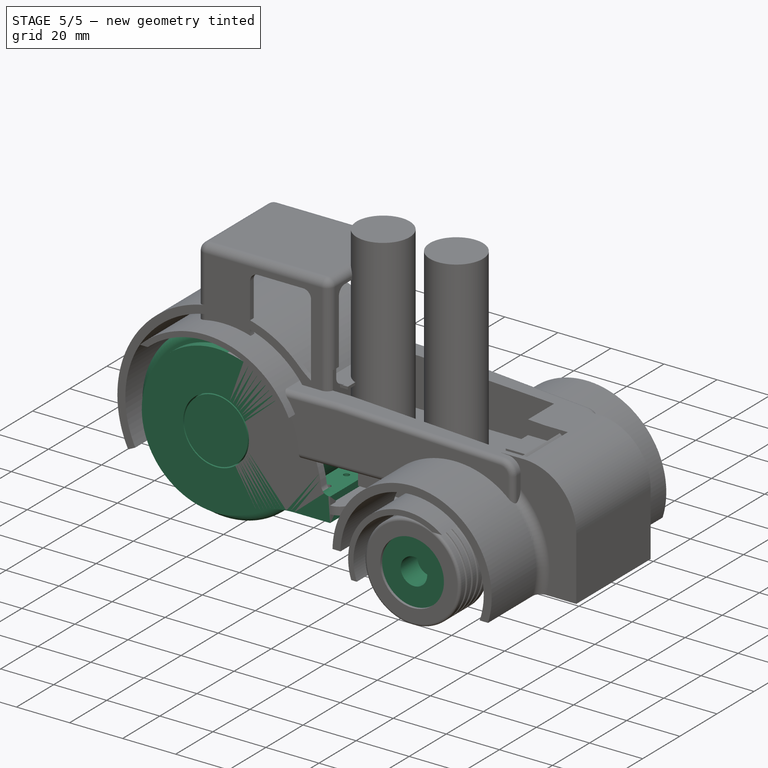
[diagram: stage 5 of 5 — iso view after this stage's code; geometry added in this stage tinted green]
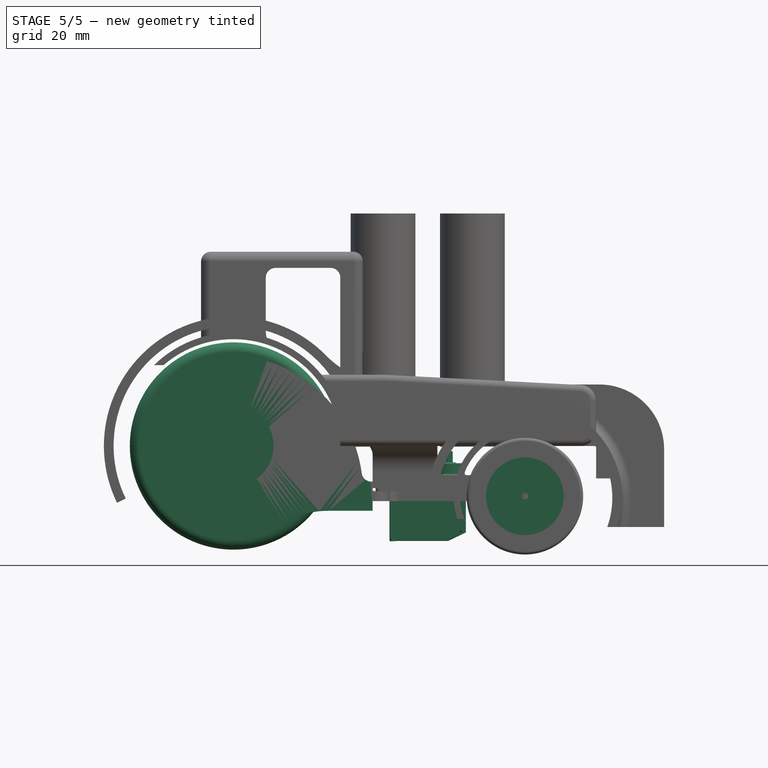
[diagram: stage 5 of 5 — front view after this stage's code; geometry added in this stage tinted green]
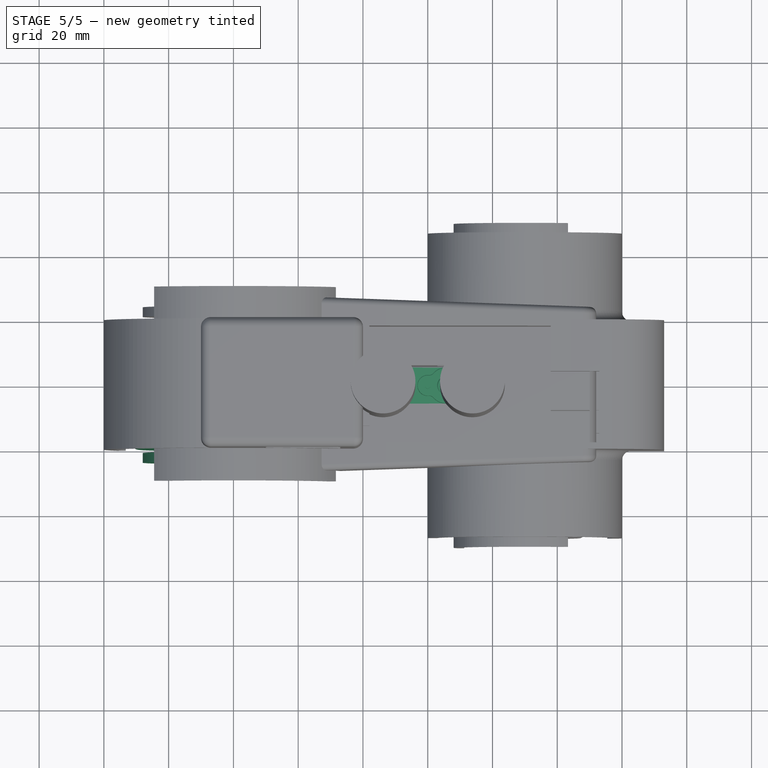
[diagram: stage 5 of 5 — top view after this stage's code; geometry added in this stage tinted green]
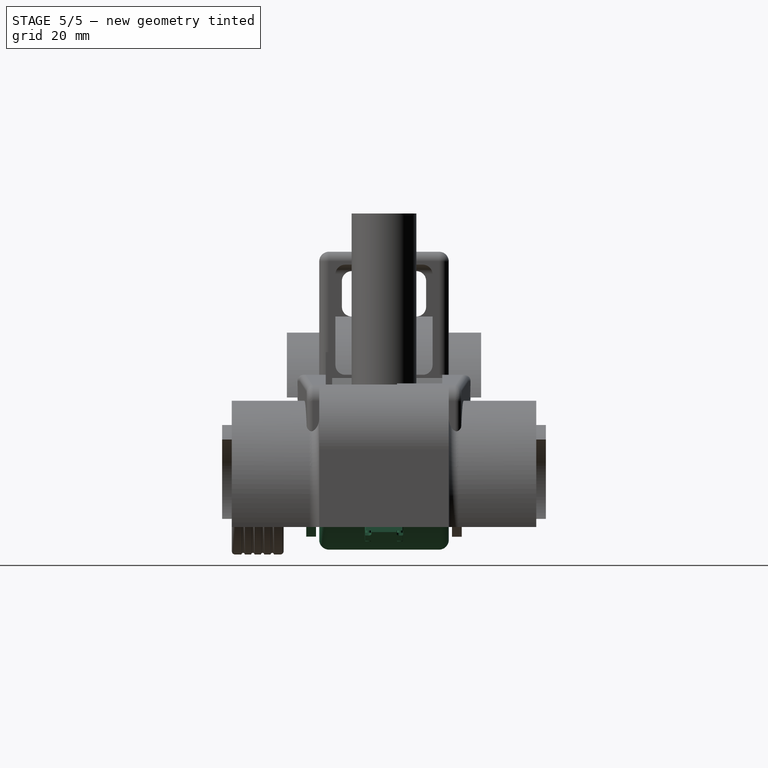
[diagram: stage 5 of 5 — right view after this stage's code; geometry added in this stage tinted green]
FEATURE [Part::MultiFuse] Fusion  label="pololo 250:003"
  Placement = pos=(0,9.5,0) rot=(1,0,0;1.5708rad)
FEATURE [Part::Feature] Fillet005  label="pololy bracket001"
  Placement = pos=(0,10,0) rot=(0,0,1;0rad)
  shape: bbox 26.6 x 17.3 x 11.5 mm, 26 faces (baked)
FEATURE [Part::Cylinder] Cylinder  label="Cilindro"
  Angle = 360
  Height = 40
  Placement = pos=(0,20,0) rot=(1,0,0;1.5708rad)
  Radius = 26.62
FEATURE [Sketcher::SketchObject] Sketch
  Placement = pos=(0,0,0) rot=(1,0,0;1.5708rad)
  sketch-geometry (23):
    g0: LineSegment [constr] StartX=20.1188 StartY=-17.433 StartZ=0 EndX=26.35 EndY=-3.78856 EndZ=0
    g1: LineSegment [constr] StartX=26.35 StartY=-3.78856 StartZ=0 EndX=24.2153 EndY=11.0588 EndZ=0
    g2: LineSegment [constr] StartX=24.2153 StartY=11.0588 StartZ=0 EndX=14.3924 EndY=22.395 EndZ=0
    g3: LineSegment [constr] StartX=14.3924 StartY=22.395 StartZ=0 EndX=0 EndY=26.621 EndZ=0
    g4: LineSegment [constr] StartX=0 StartY=26.621 StartZ=0 EndX=-14.3924 EndY=22.395 EndZ=0
    g5: LineSegment [constr] StartX=-14.3924 StartY=22.395 StartZ=0 EndX=-24.2153 EndY=11.0588 EndZ=0
    g6: LineSegment [constr] StartX=-24.2153 StartY=11.0588 StartZ=0 EndX=-26.35 EndY=-3.78856 EndZ=0
    g7: LineSegment [constr] StartX=-7.5 StartY=-25.5427 StartZ=0 EndX=7.5 EndY=-25.5427 EndZ=0
    g8: LineSegment [constr] StartX=7.5 StartY=-25.5427 StartZ=0 EndX=20.1188 EndY=-17.433 EndZ=0
    g9: Circle CenterX=0 CenterY=26.621 CenterZ=0 NormalX=0 NormalY=0 NormalZ=1 Radius=4
    g10: Circle CenterX=14.3924 CenterY=22.395 CenterZ=0 NormalX=0 NormalY=0 NormalZ=1 Radius=4
    g11: Circle CenterX=24.2153 CenterY=11.0588 CenterZ=0 NormalX=0 NormalY=0 NormalZ=1 Radius=4
    g12: Circle CenterX=26.35 CenterY=-3.78856 CenterZ=0 NormalX=0 NormalY=0 NormalZ=1 Radius=4
    g13: Circle CenterX=20.1188 CenterY=-17.433 CenterZ=0 NormalX=0 NormalY=0 NormalZ=1 Radius=4
    g14: Circle CenterX=7.5 CenterY=-25.5427 CenterZ=0 NormalX=0 NormalY=0 NormalZ=1 Radius=4
    g15: Circle CenterX=-7.5 CenterY=-25.5427 CenterZ=0 NormalX=0 NormalY=0 NormalZ=1 Radius=4
    g16: Circle CenterX=-26.35 CenterY=-3.78856 CenterZ=0 NormalX=0 NormalY=0 NormalZ=1 Radius=4
    g17: Circle CenterX=-24.2153 CenterY=11.0588 CenterZ=0 NormalX=0 NormalY=0 NormalZ=1 Radius=4
    g18: Circle CenterX=-14.3924 CenterY=22.395 CenterZ=0 NormalX=0 NormalY=0 NormalZ=1 Radius=4
    g19: LineSegment [constr] StartX=-26.35 StartY=-3.78856 StartZ=0 EndX=-20.1188 EndY=-17.433 EndZ=0
    g20: LineSegment [constr] StartX=-20.1188 StartY=-17.433 StartZ=0 EndX=-7.5 EndY=-25.5427 EndZ=0
    g21: Circle CenterX=-20.1188 CenterY=-17.433 CenterZ=0 NormalX=0 NormalY=0 NormalZ=1 Radius=4
    g22: Circle [constr] CenterX=0 CenterY=0 CenterZ=0 NormalX=0 NormalY=0 NormalZ=1 Radius=26.621
  constraints (51):
    c: Coincident(g0,g1)
    c: Coincident(g1,g2)
    c: Coincident(g2,g3)
    c: Coincident(g3,g4)
    c: Coincident(g4,g5)
    c: Coincident(g5,g6)
    c: Equal(g0,g1)
    c: Equal(g1,g2)
    c: Equal(g2,g3)
    c: Equal(g3,g4)
    c: Equal(g4,g5)
    c: Coincident(g8,g0)
    c: Coincident(g7,g8)
    c: Equal(g8,g0)
    c: Equal(g0,g7)
    c: Distance(g2) = 15
    c: PointOnObject(g3,g-2)
    c: Coincident(g9,g3)
    c: Coincident(g10,g2)
    c: Coincident(g11,g1)
    c: Coincident(g12,g0)
    c: Coincident(g14,g7)
    c: Coincident(g16,g6)
    c: Coincident(g17,g5)
    c: Coincident(g18,g4)
    c: Radius(g11) = 4
    c: Equal(g11, g12-g18) x7
    c: Equal(g11,g9)
    c: Equal(g11,g10)
    c: Coincident(g13,g0)
    c: Coincident(g6,g19)
    c: Coincident(g19,g20)
    c: Coincident(g20,g7)
    c: Coincident(g7,g15)
    c: Equal(g19,g20)
    c: Equal(g20,g7)
    c: Coincident(g21,g19)
    c: Equal(g21,g15)
    c: Coincident(g22,g-1)
    c: PointOnObject(g7,g22)
    c: PointOnObject(g19,g22)
    c: PointOnObject(g6,g22)
    c: PointOnObject(g5,g22)
    c: PointOnObject(g4,g22)
    c: PointOnObject(g3,g22)
    c: PointOnObject(g2,g22)
    c: PointOnObject(g1,g22)
    c: PointOnObject(g0,g22)
    c: PointOnObject(g0,g22)
    c: PointOnObject(g7,g22)
    c: Equal(g6,g5)
FEATURE [Part::Cylinder] Cylinder001  label="Cilindro001"
  Angle = 360
  Height = 30
  Placement = pos=(0,20,0) rot=(1,0,0;1.5708rad)
  Radius = 19
FEATURE [Part::Cut] Cut
  Base = -> Cylinder
  Tool = -> Cylinder001
FEATURE [PartDesign::Pad] Pad
  Length = 40
  Length2 = 100
  Midplane = true
  Placement = pos=(0,0,0) rot=(1,0,0;1.5708rad)
  Sketch = -> Sketch
  Type = 0
FEATURE [Part::Cut] Cut001
  Base = -> Cut
  Tool = -> Pad
FEATURE [Part::Cylinder] Cylinder002  label="Cilindro002"
  Angle = 360
  Height = 35
  Placement = pos=(0,-13,5) rot=(0,0,1;0rad)
  Radius = 3.5
FEATURE [Part::Cylinder] Cylinder003  label="Cilindro003"
  Angle = 360
  Height = 18
  Placement = pos=(0,0,0) rot=(1,0,0;1.5708rad)
  Radius = 1.7
FEATURE [Part::Cylinder] Cylinder004  label="Cilindro004"
  Angle = 360
  Height = 40
  Placement = pos=(0,-13,0) rot=(0,0,1;0rad)
  Radius = 1.5
FEATURE [Part::MultiFuse] Fusion001
  Shapes = -> [Cylinder004,Cylinder003,Cylinder002]
FEATURE [Part::Cut] Cut002
  Base = -> Cut001
  Tool = -> Fusion001
FEATURE [Part::Fillet] Fillet
  Base = -> Cut002
  Edges = 1 edges r=3: [Edge82]
FEATURE [Part::Cylinder] Cylinder010  label="Cilindro010"
  Angle = 360
  Height = 4
  Placement = pos=(0,-20,0) rot=(1,0,0;1.5708rad)
  Radius = 12
FEATURE [Part::MultiFuse] Fusion006
  Shapes = -> [Cylinder010,Fillet]
FEATURE [Part::Cylinder] Cylinder011  label="Cilindro011"
  Angle = 360
  Height = 3
  Placement = pos=(0,-21,0) rot=(1,0,0;1.5708rad)
  Radius = 28
FEATURE [Part::Cylinder] Cylinder012  label="Cilindro012"
  Angle = 360
  Height = 4
  Placement = pos=(0,-20,0) rot=(1,0,0;1.5708rad)
  Radius = 12.4
FEATURE [Part::Cut] Cut006
  Base = -> Cylinder011
  Tool = -> Cylinder012
FEATURE [Part::FeaturePython] Clone  label="Clone of Pad"  # Draft clone (typed FeaturePython)
  Objects = -> [Pad]
  Placement = pos=(0,0,0) rot=(1,0,0;1.5708rad)
  Scale = (1,1,1)
FEATURE [Part::FeaturePython] Clone001  label="Clone of Cilindro"  # Draft clone (typed FeaturePython)
  Objects = -> [Cylinder]
  Placement = pos=(0,20,0) rot=(1,0,0;1.5708rad)
  Scale = (1,1,1)
FEATURE [Part::Cut] Cut007
  Base = -> Clone001
  Tool = -> Clone
FEATURE [Part::Cylinder] Cylinder013  label="Cilindro013"
  Angle = 360
  Height = 40
  Placement = pos=(0,20,0) rot=(1,0,0;1.5708rad)
  Radius = 32
FEATURE [Part::Cut] Cut008
  Base = -> Cylinder013
  Tool = -> Cut007
FEATURE [Part::Fillet] Fillet007
  Base = -> Cut008
  Edges = 2 edges r=3: [Edge1,Edge3]
FEATURE [Sketcher::SketchObject] Sketch001
  Placement = pos=(0,0,-14) rot=(0,0,1;0rad)
  sketch-geometry (27):
    g0: ArcOfCircle CenterX=90 CenterY=20 CenterZ=0 NormalX=0 NormalY=0 NormalZ=1 Radius=4 StartAngle=6.28319 EndAngle=9.42478
    g1: ArcOfCircle CenterX=90 CenterY=-20 CenterZ=0 NormalX=0 NormalY=0 NormalZ=1 Radius=4 StartAngle=3.14159 EndAngle=6.28319
    g2: LineSegment StartX=28 StartY=13.0284 StartZ=0 EndX=28 EndY=16.0284 EndZ=0
    g3: LineSegment StartX=94 StartY=20 StartZ=0 EndX=94 EndY=-20 EndZ=0
    g4: LineSegment StartX=77 StartY=10 StartZ=0 EndX=51 EndY=10 EndZ=0
    g5: LineSegment StartX=77 StartY=-10 StartZ=0 EndX=51 EndY=-10 EndZ=0
    g6: LineSegment StartX=13 StartY=21 StartZ=0 EndX=30 EndY=21 EndZ=0
    g7: LineSegment StartX=33 StartY=18 StartZ=0 EndX=33 EndY=-18 EndZ=0
    g8: LineSegment StartX=30 StartY=-21 StartZ=0 EndX=13 EndY=-21 EndZ=0
    g9: LineSegment StartX=86 StartY=19 StartZ=0 EndX=86 EndY=20 EndZ=0
    g10: LineSegment StartX=86 StartY=-19 StartZ=0 EndX=86 EndY=-20 EndZ=0
    g11: LineSegment StartX=13 StartY=21 StartZ=0 EndX=13 EndY=24 EndZ=0
    g12: LineSegment StartX=13 StartY=24 StartZ=0 EndX=43 EndY=24 EndZ=0
    g13: LineSegment StartX=48 StartY=19 StartZ=0 EndX=48 EndY=13 EndZ=0
    g14: LineSegment StartX=13 StartY=-21 StartZ=0 EndX=13 EndY=-24 EndZ=0
    g15: LineSegment StartX=13 StartY=-24 StartZ=0 EndX=43 EndY=-24 EndZ=0
    g16: LineSegment StartX=48 StartY=-19 StartZ=0 EndX=48 EndY=-13 EndZ=0
    g17: ArcOfCircle CenterX=77 CenterY=19 CenterZ=0 NormalX=0 NormalY=0 NormalZ=1 Radius=9 StartAngle=4.71239 EndAngle=6.28319
    g18: ArcOfCircle CenterX=77 CenterY=-19 CenterZ=0 NormalX=0 NormalY=0 NormalZ=1 Radius=9 StartAngle=0 EndAngle=1.5708
    g19: ArcOfCircle CenterX=51 CenterY=-13 CenterZ=0 NormalX=0 NormalY=0 NormalZ=1 Radius=3 StartAngle=1.5708 EndAngle=3.14159
    g20: ArcOfCircle CenterX=51 CenterY=13 CenterZ=0 NormalX=0 NormalY=0 NormalZ=1 Radius=3 StartAngle=3.14159 EndAngle=4.71239
    g21: ArcOfCircle CenterX=30 CenterY=-18 CenterZ=0 NormalX=0 NormalY=0 NormalZ=1 Radius=3 StartAngle=4.71239 EndAngle=6.28319
    g22: ArcOfCircle CenterX=30 CenterY=18 CenterZ=0 NormalX=0 NormalY=0 NormalZ=1 Radius=3 StartAngle=0 EndAngle=1.5708
    g23: ArcOfCircle CenterX=43 CenterY=19 CenterZ=0 NormalX=0 NormalY=0 NormalZ=1 Radius=5 StartAngle=0 EndAngle=1.5708
    g24: ArcOfCircle CenterX=43 CenterY=-19 CenterZ=0 NormalX=0 NormalY=0 NormalZ=1 Radius=5 StartAngle=4.71239 EndAngle=6.28319
    g25: Circle CenterX=90 CenterY=20 CenterZ=0 NormalX=0 NormalY=0 NormalZ=1 Radius=1.1
    g26: Circle CenterX=90 CenterY=-20 CenterZ=0 NormalX=0 NormalY=0 NormalZ=1 Radius=1.1
  constraints (69):
    c: DistanceX(g0) = 90
    c: Radius(g0) = 4
    c: Vertical(g2)
    c: Coincident(g3,g0)
    c: Vertical(g3)
    c: Coincident(g1,g3)
    c: Tangent(g1,g3)
    c: Tangent(g0,g3)
    c: Equal(g1,g0)
    c: Symmetric(g1,g0,g-1)
    c: DistanceY(g0) = 20
    c: Horizontal(g4)
    c: Horizontal(g5)
    c: DistanceY(g0) = 20
    c: Horizontal(g6)
    c: Vertical(g7)
    c: Horizontal(g8)
    c: Vertical(g9)
    c: Vertical(g10)
    c: Coincident(g1,g10)
    c: Coincident(g0,g9)
    c: Coincident(g6,g11)
    c: Vertical(g11)
    c: Coincident(g11,g12)
    c: Horizontal(g12)
    c: Vertical(g13)
    c: Coincident(g8,g14)
    c: Vertical(g14)
    c: Coincident(g14,g15)
    c: Horizontal(g15)
    c: Vertical(g16)
    c: Equal(g11,g14)
    c: Equal(g8,g6)
    c: Distance(g11) = 3
    c: Equal(g5,g4)
    c: Tangent(g9,g17) = -1.5708
    c: Tangent(g4,g17) = 1.5708
    c: Tangent(g10,g18) = 1.5708
    c: Tangent(g5,g18) = -1.5708
    c: Tangent(g5,g19) = -1.5708
    c: Tangent(g16,g19) = 1.5708
    c: Tangent(g4,g20) = 1.5708
    c: Tangent(g13,g20) = -1.5708
    c: Tangent(g8,g21) = 1.5708
    c: Tangent(g7,g21) = 1.5708
    c: Tangent(g7,g22) = 1.5708
    c: Tangent(g6,g22) = 1.5708
    c: Radius(g22) = 3
    c: Equal(g22,g21)
    c: DistanceY(g6) = 21
    c: Symmetric(g6,g8,g-1)
    c: Radius(g19) = 3
    c: Equal(g19,g20)
    c: Radius(g18) = 9
    c: Symmetric(g5,g4,g-1)
    c: DistanceY(g5) = -10
    c: Tangent(g13,g23) = 1.5708
    c: Tangent(g12,g23) = 1.5708
    c: Tangent(g16,g24) = -1.5708
    c: Tangent(g15,g24) = -1.5708
    c: Radius(g24) = 5
    c: Equal(g24,g23)
    c: Distance(g15) = 30
    c: Coincident(g25,g0)
    c: Coincident(g26,g1)
    c: Radius(g26) = 1.1
    c: Equal(g26,g25)
    c: DistanceX(g12) = 43
    c: DistanceX(g7) = 33
FEATURE [Part::Feature] Part__Feature  label="Emax-es08A-final"
  Placement = pos=(50,0,14) rot=(1,0,0;3.14159rad)
  shape: bbox 32.2 x 12.1 x 25.4 mm, 95 faces (baked)
FEATURE [Part::Feature] Part__Feature001  label="Emax-es08A-final001"
  Placement = pos=(50,0,14) rot=(1,0,0;3.14159rad)
  shape: bbox 3.784 x 3.784 x 8.4 mm, 50 faces (baked)
FEATURE [Part::Feature] Part__Feature002  label="Emax-es08A-final002"
  Placement = pos=(50,0,14) rot=(1,0,0;3.14159rad)
  shape: bbox 1.8 x 1.8 x 15.3 mm, 18 faces (baked)
FEATURE [Part::Feature] Part__Feature003  label="Emax-es08A-final003"
  Placement = pos=(50,0,14) rot=(1,0,0;3.14159rad)
  shape: bbox 1.8 x 1.8 x 15.3 mm, 18 faces (baked)
FEATURE [Part::Feature] Part__Feature004  label="Emax-es08A-final004"
  Placement = pos=(50,0,14) rot=(1,0,0;3.14159rad)
  shape: bbox 1.8 x 1.8 x 15.3 mm, 18 faces (baked)
FEATURE [Part::Feature] Part__Feature005  label="Emax-es08A-final005"
  Placement = pos=(50,0,14) rot=(1,0,0;3.14159rad)
  shape: bbox 1.8 x 1.8 x 15.3 mm, 18 faces (baked)
FEATURE [Part::MultiFuse] Fusion007
  Placement = pos=(10,0,-5) rot=(1,0,0;3.14159rad)
  Shapes = -> [Part__Feature005,Part__Feature,Part__Feature003,Part__Feature004,Part__Feature002,Part__Feature001]
FEATURE [Sketcher::SketchObject] Sketch009
  Placement = pos=(5,0,-11) rot=(0,0,1;0rad)
  sketch-geometry (13):
    g0: ArcOfCircle [constr] CenterX=85 CenterY=20 CenterZ=0 NormalX=0 NormalY=0 NormalZ=1 Radius=4 StartAngle=3.91679 EndAngle=6.28318
    g1: ArcOfCircle [constr] CenterX=75 CenterY=20 CenterZ=0 NormalX=0 NormalY=0 NormalZ=1 Radius=4 StartAngle=1.79211 EndAngle=5.50799
    g2: ArcOfCircle [constr] CenterX=80 CenterY=15.101 CenterZ=0 NormalX=0 NormalY=0 NormalZ=1 Radius=3 StartAngle=0.775193 EndAngle=2.3664
    g3: LineSegment [constr] StartX=89 StartY=30 StartZ=0 EndX=89 EndY=20 EndZ=0
    g4: Circle CenterX=75 CenterY=20 CenterZ=0 NormalX=0 NormalY=0 NormalZ=1 Radius=1.1
    g5: LineSegment [constr] StartX=89 StartY=30 StartZ=0 EndX=79 EndY=30 EndZ=0
    g6: ArcOfCircle [constr] CenterX=72.75 CenterY=30 CenterZ=0 NormalX=0 NormalY=0 NormalZ=1 Radius=6.25 StartAngle=4.9337 EndAngle=6.28319
    g7: Circle [constr] CenterX=85 CenterY=20 CenterZ=0 NormalX=0 NormalY=0 NormalZ=1 Radius=1.1
    g8: ArcOfCircle CenterX=75 CenterY=-20 CenterZ=0 NormalX=0 NormalY=0 NormalZ=1 Radius=2.5 StartAngle=3.14159 EndAngle=6.28319
    g9: ArcOfCircle CenterX=75 CenterY=20 CenterZ=0 NormalX=0 NormalY=0 NormalZ=1 Radius=2.5 StartAngle=0 EndAngle=3.14159
    g10: LineSegment StartX=77.5 StartY=-20 StartZ=0 EndX=77.5 EndY=20 EndZ=0
    g11: LineSegment StartX=72.5 StartY=-20 StartZ=0 EndX=72.5 EndY=20 EndZ=0
    g12: Circle CenterX=75 CenterY=-20 CenterZ=0 NormalX=0 NormalY=0 NormalZ=1 Radius=1.1
  constraints (37):
    c: DistanceX(g0) = 85
    c: DistanceY(g0) = 20
    c: Coincident(g2,g0)
    c: Tangent(g2,g0)
    c: Radius(g0) = 4
    c: Coincident(g2,g1)
    c: Tangent(g2,g1)
    c: Vertical(g3)
    c: Coincident(g0,g3)
    c: Tangent(g3,g0)
    c: Coincident(g4,g1)
    c: Radius(g4) = 1.1
    c: Radius(g1) = 4
    c: Distance(g3) = 10
    c: Horizontal(g5)
    c: Coincident(g1,g6)
    c: Tangent(g6,g1)
    c: Coincident(g5,g6)
    c: DistanceY(g1,g0) = 0
    c: Coincident(g3,g5)
    c: Distance(g5) = 10
    c: Perpendicular(g6,g5)
    c: DistanceX(g1,g0) = 10
    c: Coincident(g7,g0)
    c: Radius(g7) = 1.1
    c: Radius(g2) = 3
    c: Tangent(g8,g11) = 1.5708
    c: Tangent(g8,g10) = -1.5708
    c: Tangent(g10,g9) = -1.5708
    c: Tangent(g11,g9) = 1.5708
    c: Vertical(g10)
    c: Equal(g8,g9)
    c: Coincident(g9,g1)
    c: Coincident(g8,g12)
    c: Symmetric(g8,g1,g-1)
    c: Equal(g12,g4)
    c: Radius(g8) = 2.5
FEATURE [PartDesign::Pad] Pad004
  Length = 2
  Length2 = 100
  Placement = pos=(5,0,-11) rot=(0,0,1;0rad)
  Sketch = -> Sketch009
  Type = 0
FEATURE [Sketcher::SketchObject] Sketch010
  Placement = pos=(0,0,-7) rot=(1,0,0;3.14159rad)
  sketch-geometry (6):
    g0: Circle CenterX=75 CenterY=20 CenterZ=0 NormalX=0 NormalY=0 NormalZ=1 Radius=1.1
    g1: ArcOfCircle CenterX=75 CenterY=20 CenterZ=0 NormalX=0 NormalY=0 NormalZ=1 Radius=2.5 StartAngle=0 EndAngle=3.14159
    g2: ArcOfCircle CenterX=75 CenterY=0 CenterZ=0 NormalX=0 NormalY=0 NormalZ=1 Radius=2.5 StartAngle=3.14159 EndAngle=6.28319
    g3: LineSegment StartX=72.5 StartY=20 StartZ=0 EndX=72.5 EndY=0 EndZ=0
    g4: LineSegment StartX=77.5 StartY=20 StartZ=0 EndX=77.5 EndY=0 EndZ=0
    g5: Circle CenterX=75 CenterY=0 CenterZ=0 NormalX=0 NormalY=0 NormalZ=1 Radius=1.1
  constraints (14):
    c: DistanceX(g0) = 75
    c: DistanceY(g0) = 20
    c: Radius(g0) = 1.1
    c: Tangent(g1,g4) = 1.5708
    c: Tangent(g1,g3) = -1.5708
    c: Tangent(g3,g2) = -1.5708
    c: Tangent(g4,g2) = 1.5708
    c: Vertical(g3)
    c: Equal(g1,g2)
    c: Coincident(g1,g0)
    c: PointOnObject(g2,g-1)
    c: Radius(g2) = 2.5
    c: Coincident(g5,g2)
    c: Equal(g5,g0)
FEATURE [PartDesign::Pad] Pad005
  Length = 2
  Length2 = 100
  Placement = pos=(0,0,-7) rot=(1,0,0;3.14159rad)
  Sketch = -> Sketch010
  Type = 0
FEATURE [Part::Cylinder] Cylinder014  label="Cilindro014"
  Angle = 360
  Height = 3
  Placement = pos=(75,-20,-12) rot=(0,0,1;0rad)
  Radius = 2.5
FEATURE [Part::Cylinder] Cylinder015  label="Cilindro015"
  Angle = 360
  Height = 3
  Placement = pos=(75,-20,-12) rot=(0,0,1;0rad)
  Radius = 1.1
FEATURE [Part::Cut] Cut011
  Base = -> Cylinder014
  Tool = -> Cylinder015
FEATURE [Part::MultiFuse] Fusion009
  Placement = pos=(5,0,3) rot=(0,0,1;0rad)
  Shapes = -> [Pad005,Cut011]
FEATURE [Part::Mirroring] Part__Mirroring002  label="Fillet008 (Mirror #3)"
  Base = (0,0,0)
  Normal = (0,1,0)
  Source = -> Fillet008
FEATURE [Part::Box] Box006  label="Cubo006"
  Height = 9
  Length = 30
  Placement = pos=(13,-24,-20) rot=(0,0,1;0rad)
  Width = 3
FEATURE [Part::Box] Box008  label="Cubo008"
  Height = 9
  Length = 10
  Placement = pos=(33,-24,-20) rot=(0,0,1;0rad)
  Width = 20
FEATURE [Part::Box] Box009  label="Cubo009"
  Height = 4
  Length = 10
  Placement = pos=(33,-21,-17.5) rot=(0,0,1;0rad)
  Width = 20
FEATURE [Part::MultiFuse] Fusion011
  Shapes = -> [Box008,Box006]
FEATURE [Part::Cut] Cut018
  Base = -> Fusion011
  Tool = -> Box009
FEATURE [Part::MultiFuse] Fusion012
  Shapes = -> [Cut018,Cut006]
FEATURE [Part::Fillet] Fillet010
  Base = -> Fusion012
  Edges = 1 edges r=10: [Edge20]
FEATURE [Part::Fillet] Fillet011
  Base = -> Fillet010
  Edges = 1 edges r=30: [Edge24]
FEATURE [Part::Box] Box010  label="Cubo010"
  Height = 4
  Length = 10
  Placement = pos=(33,-21,-11) rot=(0,0,1;0rad)
  Width = 20
FEATURE [Part::Cut] Cut019
  Base = -> Fillet011
  Tool = -> Box010
FEATURE [Part::Cylinder] Cylinder023  label="Cilindro023"
  Angle = 360
  Height = 23
  Placement = pos=(38,-8,-26) rot=(0,0,1;0rad)
  Radius = 1.1
FEATURE [Part::MultiFuse] Fusion013
  Shapes = -> [Cylinder024,Cylinder023]
FEATURE [Part::Cut] Cut020
  Base = -> Cut019
  Tool = -> Fusion013
FEATURE [Part::MultiFuse] Fusion016
  Shapes = -> [Cut020,Pad007]
FEATURE [Part::Fillet] Fillet014
  Base = -> Fusion016
  Edges = 1 edges r=3: [Edge31]
FEATURE [Part::Fillet] Fillet015
  Base = -> Fillet014
  Edges = 1 edges r=1: [Edge6]
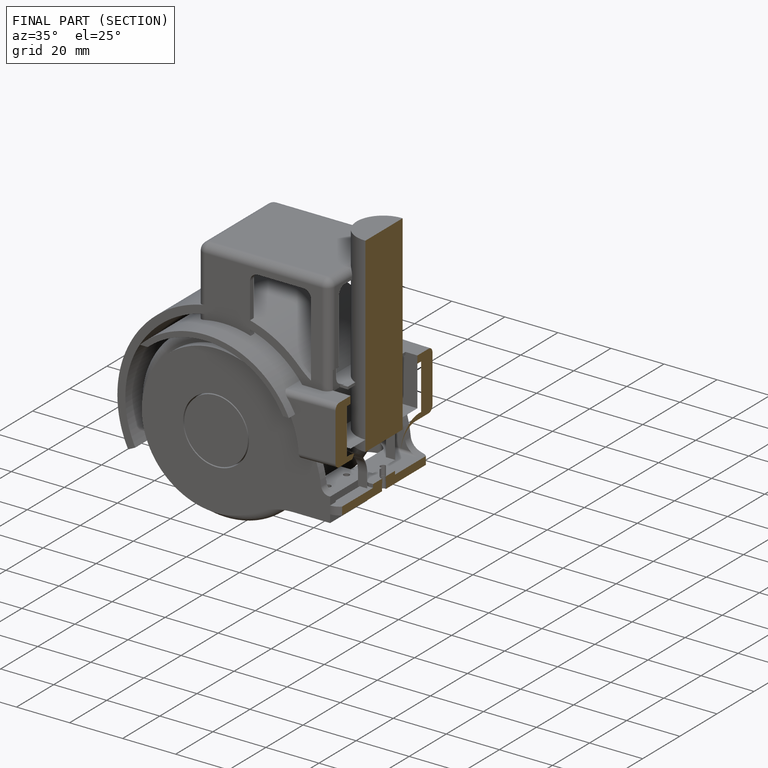
[diagram: finished part — half-section view (interior)]
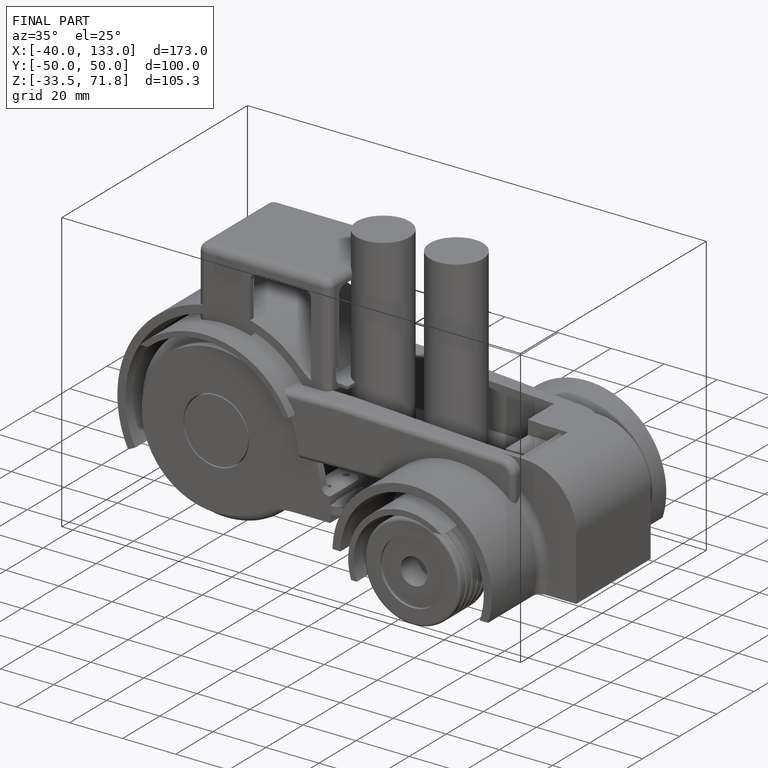
[diagram: finished part — iso view with bounding-box wireframe]
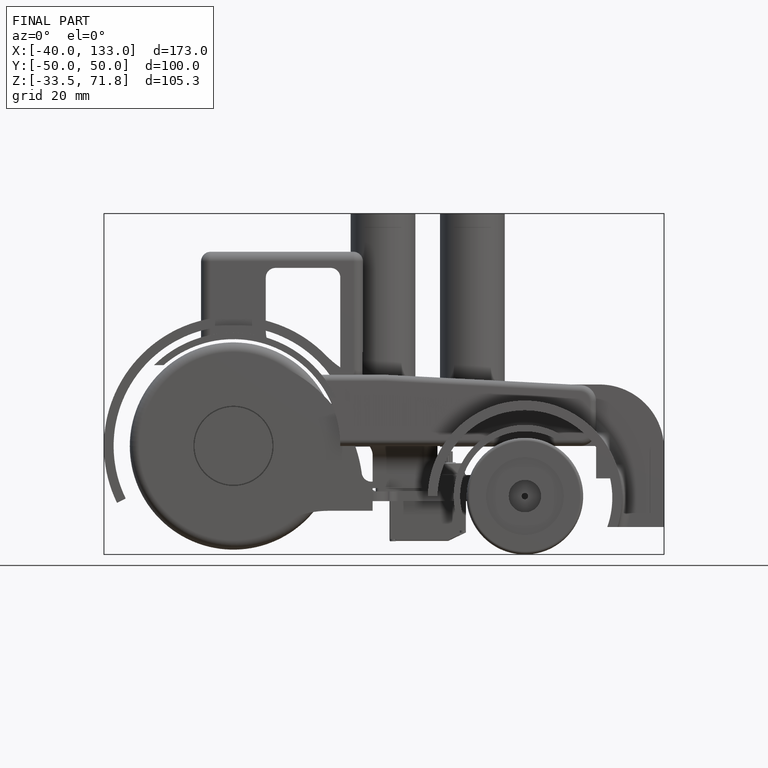
[diagram: finished part — front view with bounding-box wireframe]
